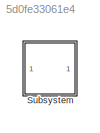
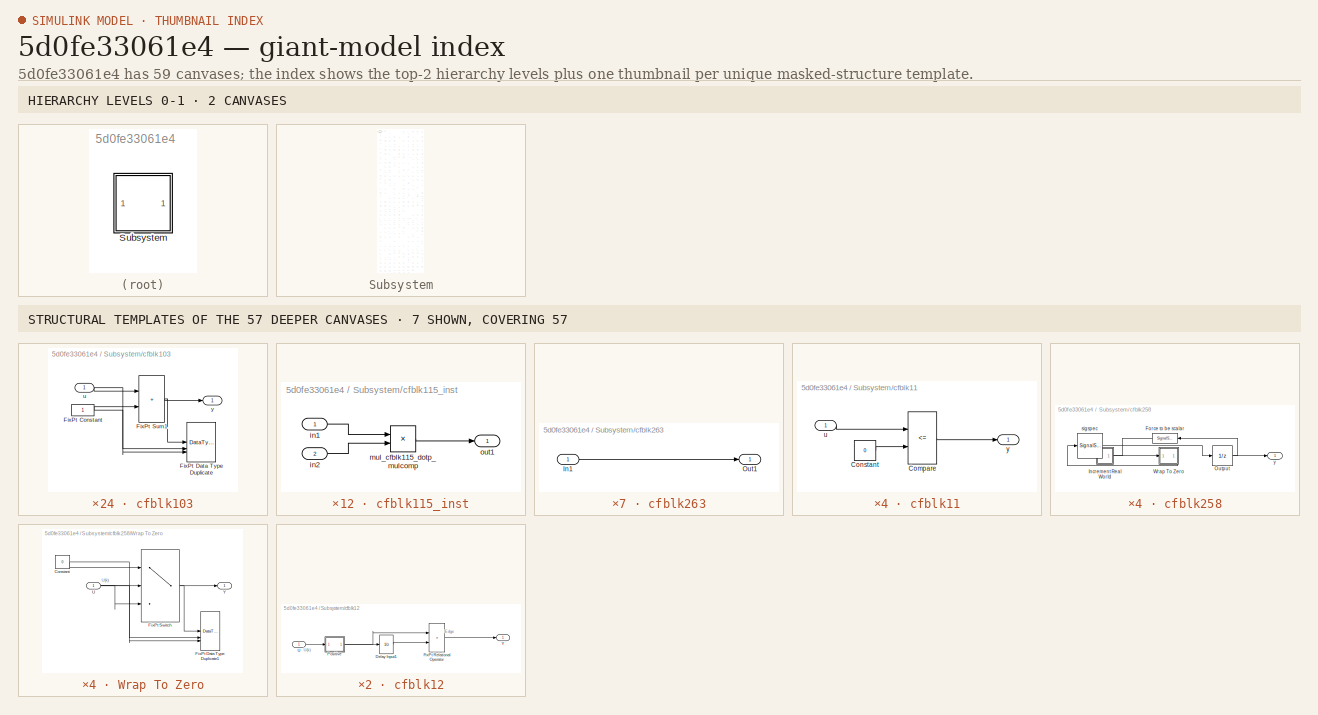
[diagram: thumbnail index - top-2 hierarchy levels (2 canvases) + 7 structural-template representatives of the remaining 57 canvases]
MODEL slx_5d0fe33061e4
KIND model
CONFIG AbsTol = auto
CONFIG EnableMultiTasking = off
CONFIG FixedStep = auto
CONFIG MaxStep = auto
CONFIG MinStep = auto
CONFIG RelTol = 1e-3
CONFIG SampleTimeConstraint = Unconstrained
CONFIG SolverName = VariableStepAuto
CONFIG StartTime = 0.0
CONFIG StopTime = 10.0
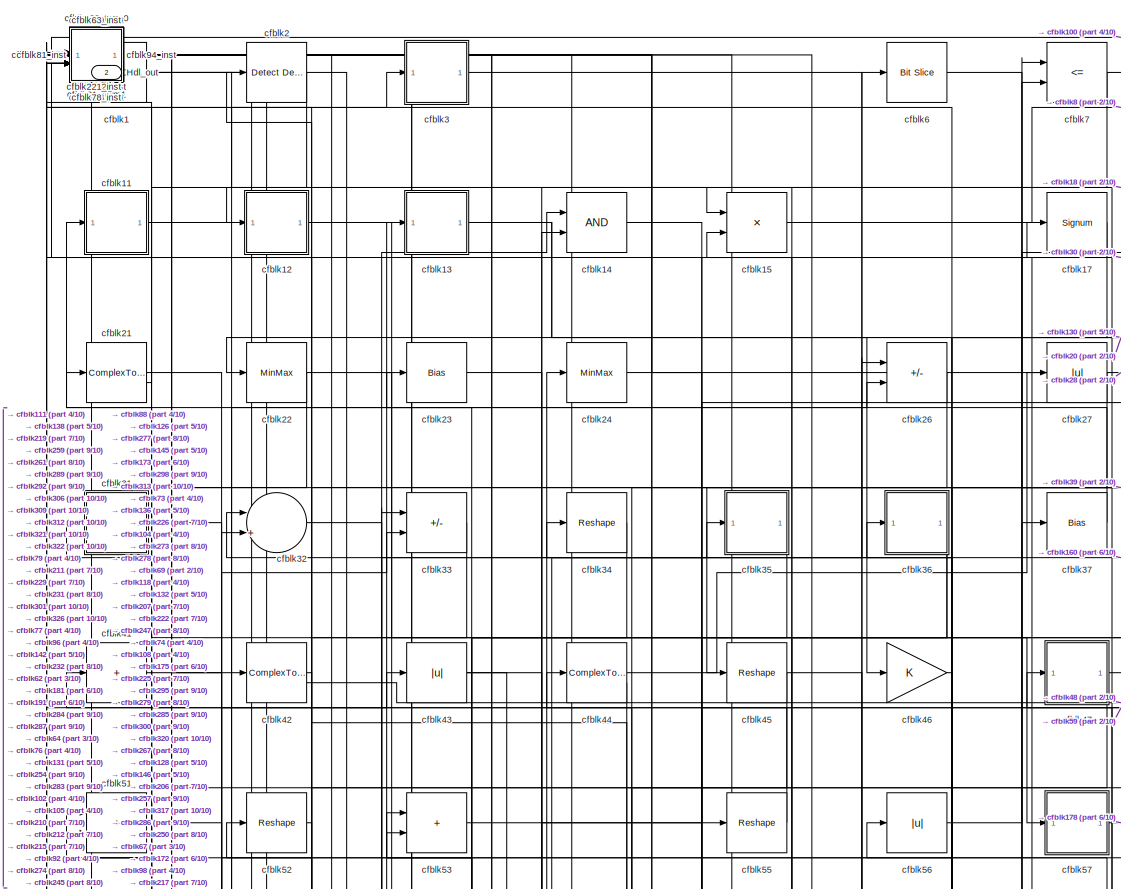
[diagram: Subsystem - part 1/10, top center region]
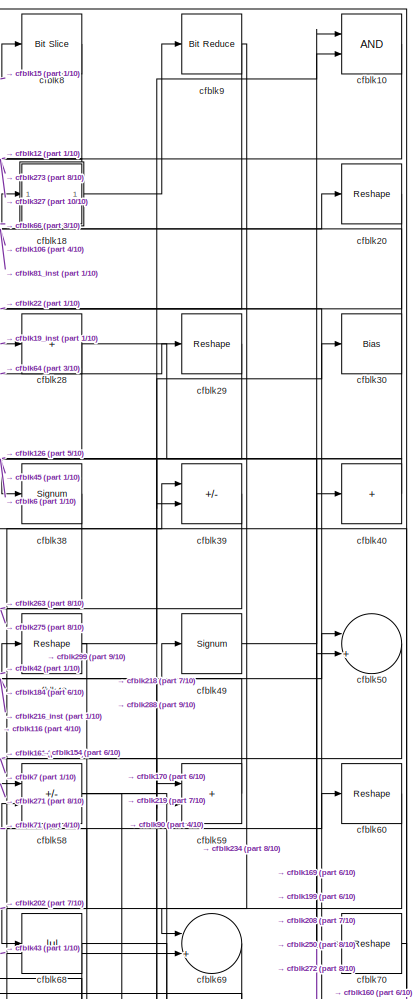
[diagram: Subsystem - part 2/10, top right region]
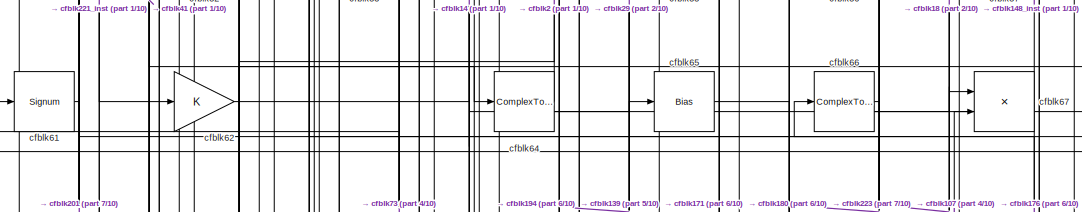
[diagram: Subsystem - part 3/10, top center region]
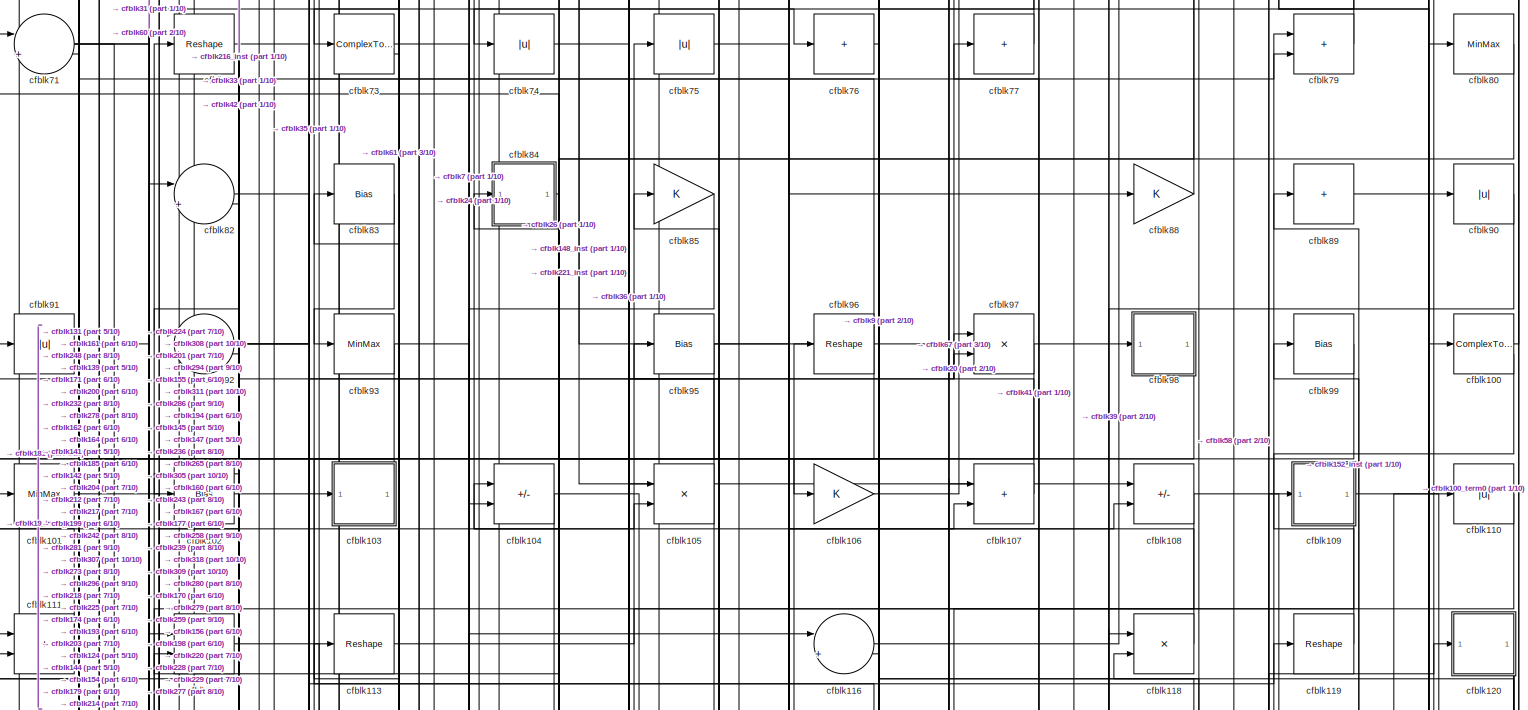
[diagram: Subsystem - part 4/10, full width, top band]
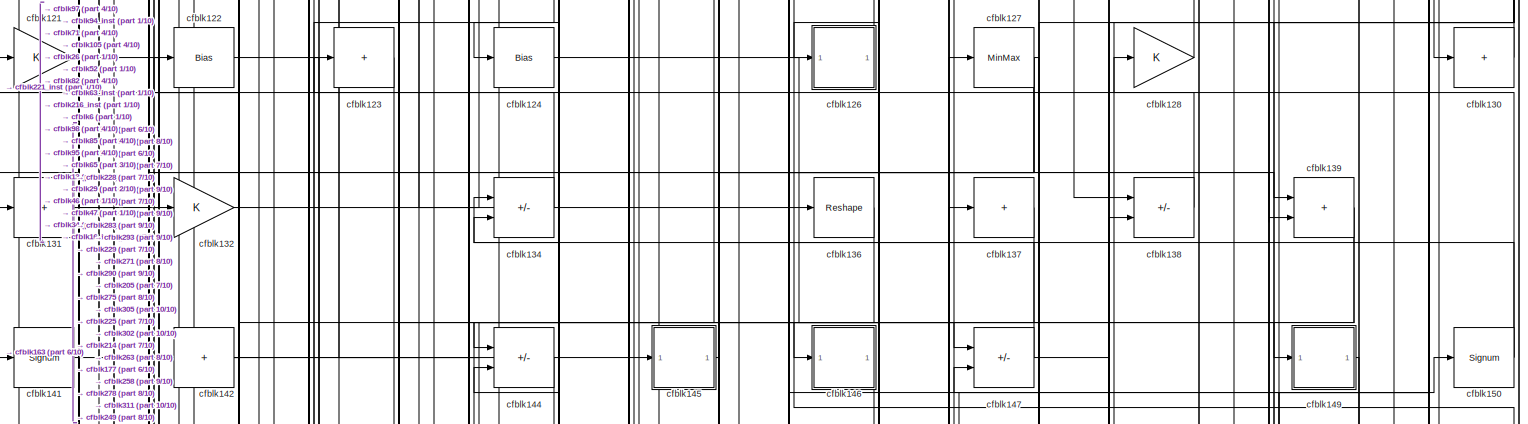
[diagram: Subsystem - part 5/10, full width, middle band]
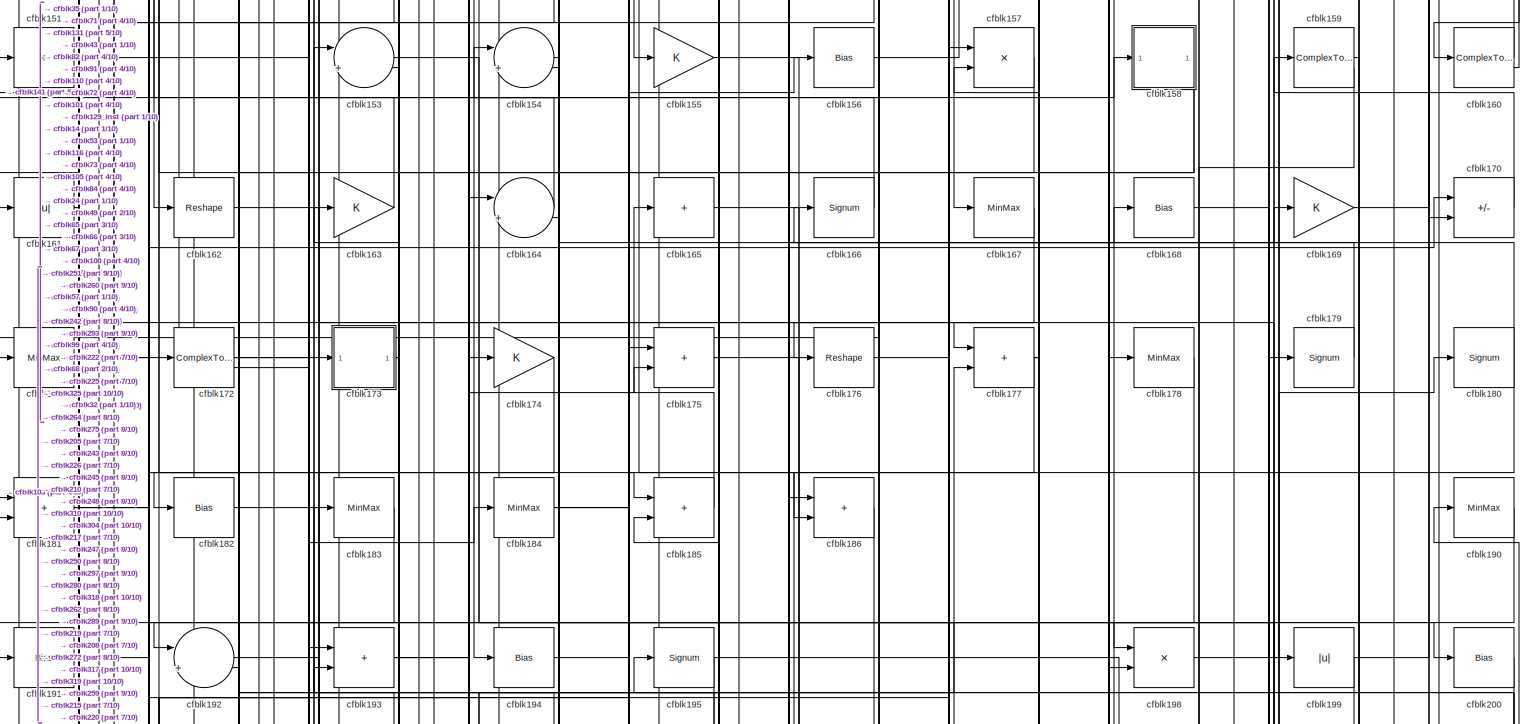
[diagram: Subsystem - part 6/10, full width, middle band]
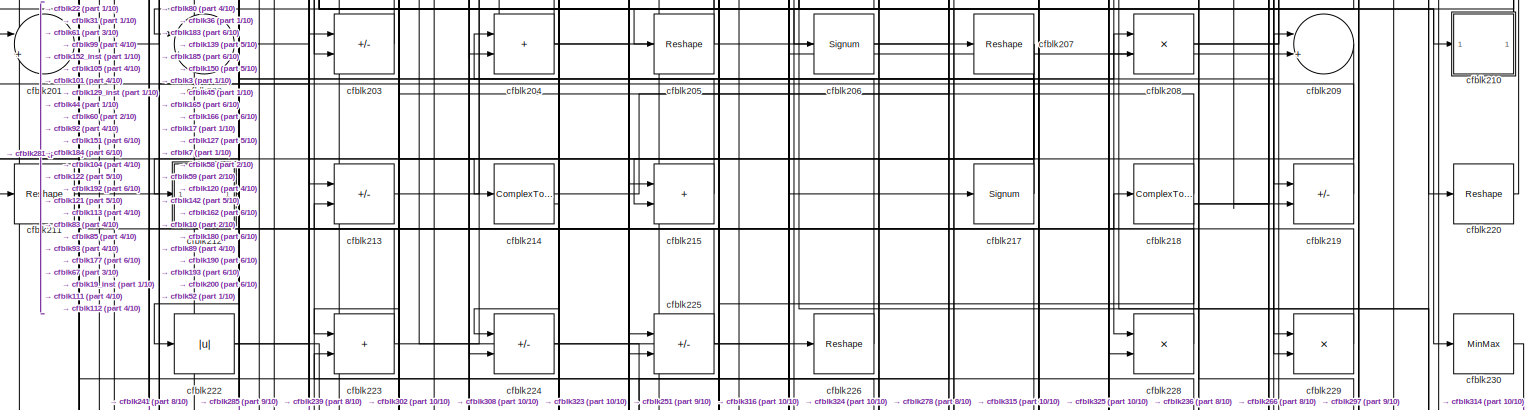
[diagram: Subsystem - part 7/10, full width, middle band]
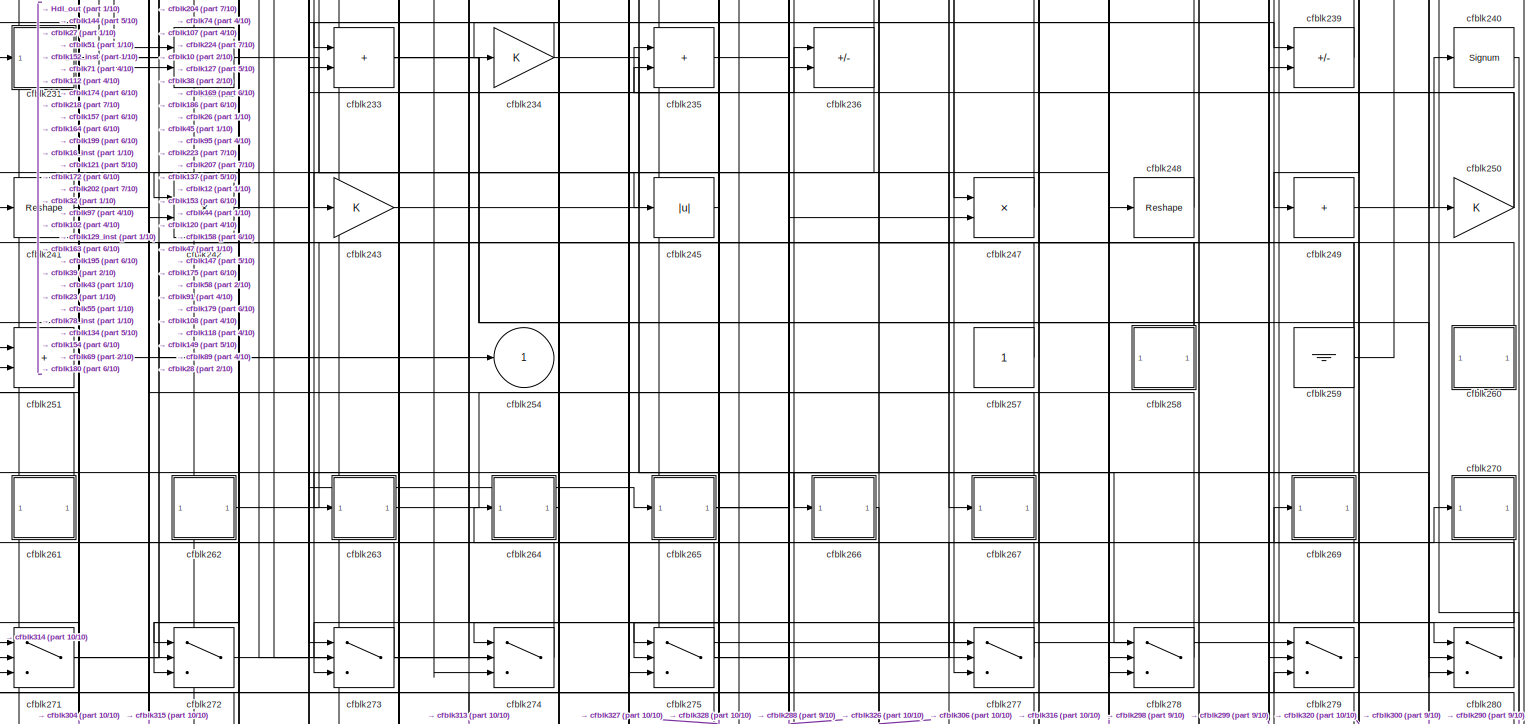
[diagram: Subsystem - part 8/10, full width, bottom band]
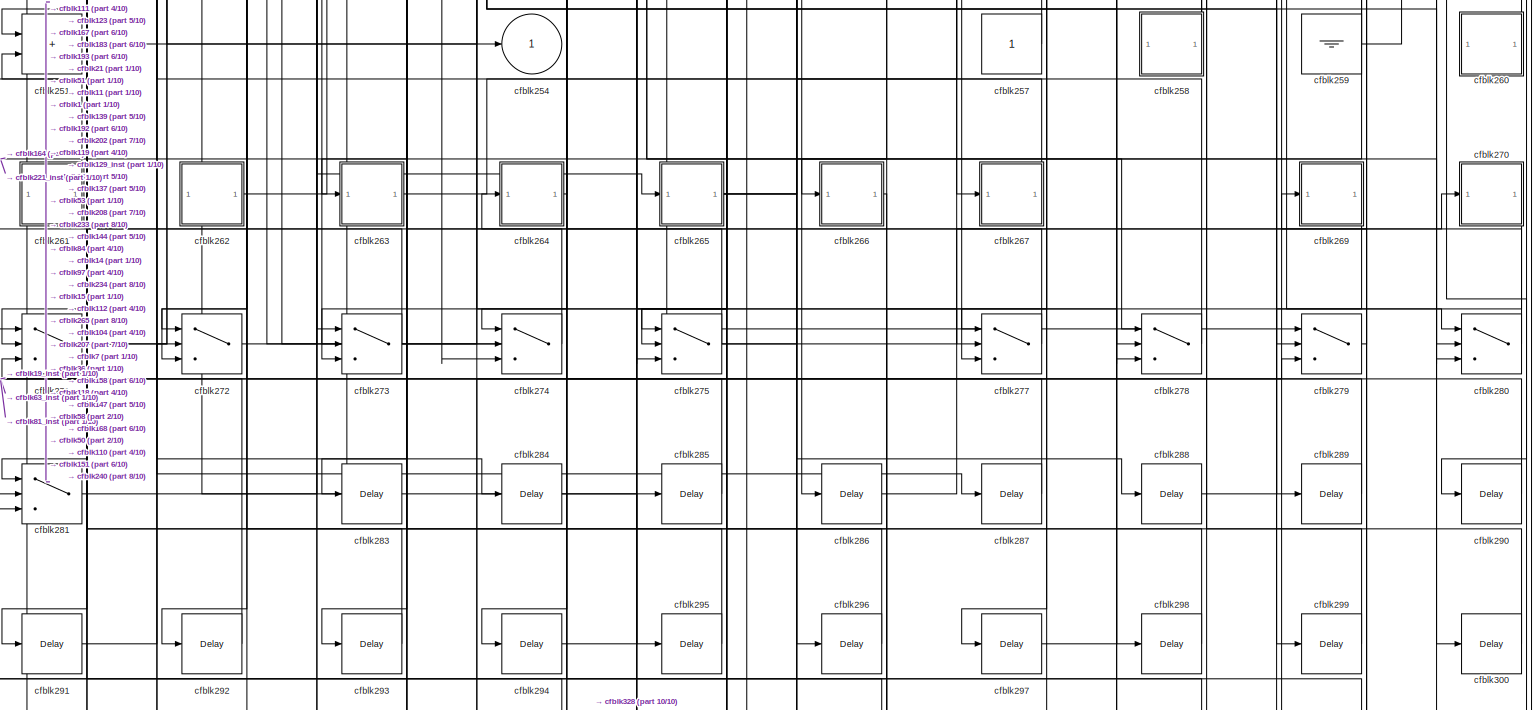
[diagram: Subsystem - part 9/10, full width, bottom band]
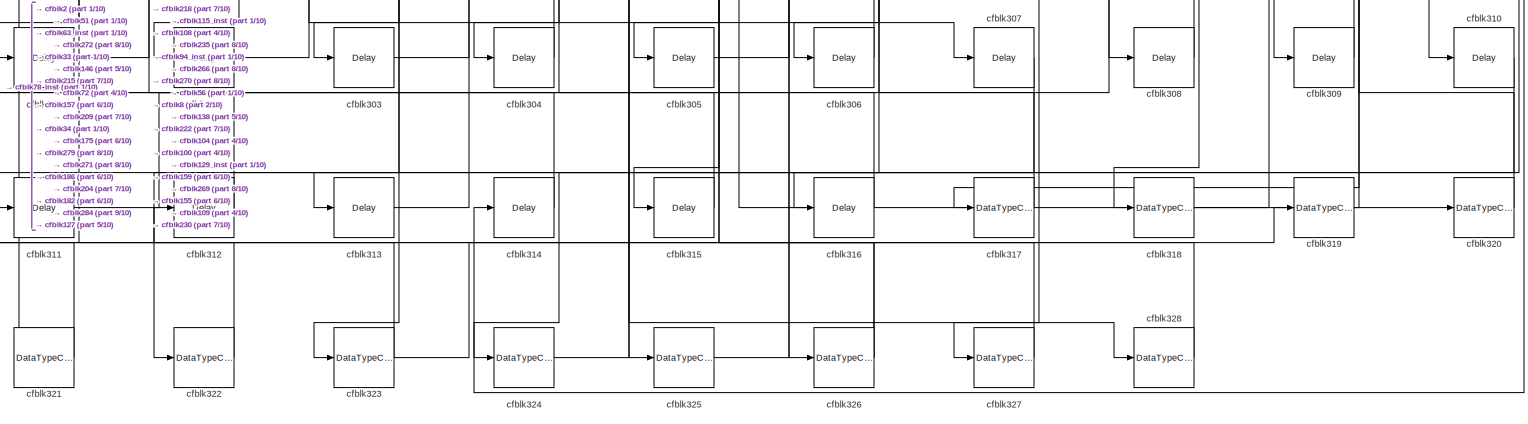
[diagram: Subsystem - part 10/10, full width, bottom band]
BLOCK [SubSystem] Subsystem
BLOCK [Outport] Subsystem/Hdl_out
  OutDataTypeStr = uint8
  Port = 2
  SampleTime = 1
BLOCK [Reference] Subsystem/cfblk1  REF=simulink/Logic and Bit
Operations/Detect
Decrease
  LibrarySourceBlock = hdlsllib/Logic and Bit\nOperations/Detect\nDecrease
  SourceBlock = simulink/Logic and Bit\nOperations/Detect\nDecrease
  SourceType = Detect Decrease
BLOCK [Logic] Subsystem/cfblk10
  AllPortsSameDT = off
  OutDataTypeStr = boolean
BLOCK [ComplexToRealImag] Subsystem/cfblk100
BLOCK [Terminator] Subsystem/cfblk100_term0
BLOCK [MinMax] Subsystem/cfblk101
  OutDataTypeStr = uint8
BLOCK [Bias] Subsystem/cfblk102
  Bias = 0.0
  SaturateOnIntegerOverflow = off
BLOCK [SubSystem] Subsystem/cfblk103
BLOCK [Constant] Subsystem/cfblk103/FixPt Constant
  DisableCoverage = on
  OutDataTypeStr = Inherit: Inherit via back propagation
  SampleTime = -1
BLOCK [DataTypeDuplicate] Subsystem/cfblk103/FixPt Data Type Duplicate
  DisableCoverage = on
  NumInputPorts = 3
BLOCK [Sum] Subsystem/cfblk103/FixPt Sum1
  IconShape = rectangular
  InputSameDT = on
  LockScale = on
  OutDataTypeStr = Inherit: Inherit via back propagation
BLOCK [Inport] Subsystem/cfblk103/u
  OutDataTypeStr = uint8
  SampleTime = 1
BLOCK [Outport] Subsystem/cfblk103/y
  SampleTime = 1
BLOCK [Sum] Subsystem/cfblk104
  IconShape = rectangular
  Inputs = +-
  OutDataTypeStr = uint8
BLOCK [Product] Subsystem/cfblk105
  Inputs = */
  OutDataTypeStr = uint8
  RndMeth = Zero
  SaturateOnIntegerOverflow = on
BLOCK [Gain] Subsystem/cfblk106
  OutDataTypeStr = uint8
BLOCK [Sum] Subsystem/cfblk107
  IconShape = rectangular
  OutDataTypeStr = uint8
BLOCK [Sum] Subsystem/cfblk108
  IconShape = rectangular
  Inputs = +-
  OutDataTypeStr = uint8
BLOCK [SubSystem] Subsystem/cfblk109
BLOCK [Constant] Subsystem/cfblk109/FixPt Constant
  DisableCoverage = on
  OutDataTypeStr = Inherit: Inherit via back propagation
  SampleTime = -1
BLOCK [DataTypeDuplicate] Subsystem/cfblk109/FixPt Data Type Duplicate
  DisableCoverage = on
  NumInputPorts = 3
BLOCK [Sum] Subsystem/cfblk109/FixPt Sum1
  IconShape = rectangular
  InputSameDT = on
  LockScale = on
  OutDataTypeStr = Inherit: Inherit via back propagation
BLOCK [Inport] Subsystem/cfblk109/u
  OutDataTypeStr = uint8
  SampleTime = 1
BLOCK [Outport] Subsystem/cfblk109/y
  SampleTime = 1
BLOCK [SubSystem] Subsystem/cfblk11
BLOCK [RelationalOperator] Subsystem/cfblk11/Compare
  Operator = <=
  OutDataTypeStr = fixdt(0, 8)
BLOCK [Constant] Subsystem/cfblk11/Constant
  DisableCoverage = on
  OutDataTypeStr = Inherit: Inherit via back propagation
  PreserveConstantTs = on
  SampleTime = -1
  Value = 0
BLOCK [Inport] Subsystem/cfblk11/u
  OutDataTypeStr = uint8
  SampleTime = 1
BLOCK [Outport] Subsystem/cfblk11/y
  SampleTime = 1
BLOCK [Abs] Subsystem/cfblk110
  OutDataTypeStr = uint8
  SaturateOnIntegerOverflow = off
BLOCK [Sum] Subsystem/cfblk111
  IconShape = rectangular
  OutDataTypeStr = uint8
BLOCK [Sum] Subsystem/cfblk112
  IconShape = rectangular
  OutDataTypeStr = uint8
BLOCK [Reshape] Subsystem/cfblk113
BLOCK [SubSystem] Subsystem/cfblk115_inst
BLOCK [Inport] Subsystem/cfblk115_inst/in1
  OutDataTypeStr = uint8
  SampleTime = 1
BLOCK [Inport] Subsystem/cfblk115_inst/in2
  OutDataTypeStr = uint8
  Port = 2
  SampleTime = 1
BLOCK [Product] Subsystem/cfblk115_inst/mul_cfblk115_dotp_mulcomp
  Inputs = **
  OutDataTypeStr = uint8
  SampleTime = 1
BLOCK [Outport] Subsystem/cfblk115_inst/out1
  OutDataTypeStr = uint8
  SampleTime = 1
BLOCK [Sum] Subsystem/cfblk116
  Inputs = |++
  OutDataTypeStr = uint8
BLOCK [Product] Subsystem/cfblk118
  Inputs = */
  OutDataTypeStr = uint8
  RndMeth = Zero
  SaturateOnIntegerOverflow = on
BLOCK [Reshape] Subsystem/cfblk119
BLOCK [SubSystem] Subsystem/cfblk12
BLOCK [UnitDelay] Subsystem/cfblk12/Delay Input1
  Description = Store in Global RAM
  DisableCoverage = on
  HasFrameUpgradeWarning = on
  InitialCondition = vinit
  SampleTime = -1
BLOCK [RelationalOperator] Subsystem/cfblk12/FixPt Relational Operator
  InputSameDT = off
  Operator = >
  OutDataTypeStr = fixdt(0, 8)
  ZeroCross = off
BLOCK [SubSystem] Subsystem/cfblk12/Positive
BLOCK [RelationalOperator] Subsystem/cfblk12/Positive/Compare
  Operator = >
  OutDataTypeStr = boolean
  ZeroCross = off
BLOCK [Constant] Subsystem/cfblk12/Positive/Constant
  DisableCoverage = on
  OutDataTypeStr = Inherit: Inherit via back propagation
  PreserveConstantTs = on
  SampleTime = -1
  Value = 0
BLOCK [Inport] Subsystem/cfblk12/Positive/u
  OutDataTypeStr = uint8
  SampleTime = 1
BLOCK [Outport] Subsystem/cfblk12/Positive/y
  SampleTime = 1
BLOCK [Inport] Subsystem/cfblk12/U
  OutDataTypeStr = uint8
  SampleTime = 1
BLOCK [Outport] Subsystem/cfblk12/Y
  SampleTime = 1
BLOCK [SubSystem] Subsystem/cfblk120
BLOCK [Constant] Subsystem/cfblk120/FixPt Constant
  DisableCoverage = on
  OutDataTypeStr = Inherit: Inherit via back propagation
  SampleTime = -1
BLOCK [DataTypeDuplicate] Subsystem/cfblk120/FixPt Data Type Duplicate
  DisableCoverage = on
  NumInputPorts = 3
BLOCK [Sum] Subsystem/cfblk120/FixPt Sum1
  IconShape = rectangular
  InputSameDT = on
  LockScale = on
  OutDataTypeStr = Inherit: Inherit via back propagation
BLOCK [Inport] Subsystem/cfblk120/u
  OutDataTypeStr = uint8
  SampleTime = 1
BLOCK [Outport] Subsystem/cfblk120/y
  SampleTime = 1
BLOCK [Gain] Subsystem/cfblk121
  OutDataTypeStr = uint8
BLOCK [Bias] Subsystem/cfblk122
  Bias = 0.0
  SaturateOnIntegerOverflow = off
BLOCK [Sum] Subsystem/cfblk123
  IconShape = rectangular
  Inputs = +
  OutDataTypeStr = uint8
BLOCK [Bias] Subsystem/cfblk124
  Bias = 0.0
  SaturateOnIntegerOverflow = off
BLOCK [SubSystem] Subsystem/cfblk126
BLOCK [Constant] Subsystem/cfblk126/FixPt Constant
  DisableCoverage = on
  OutDataTypeStr = Inherit: Inherit via back propagation
  SampleTime = -1
BLOCK [DataTypeDuplicate] Subsystem/cfblk126/FixPt Data Type Duplicate
  DisableCoverage = on
  NumInputPorts = 3
BLOCK [Sum] Subsystem/cfblk126/FixPt Sum1
  IconShape = rectangular
  InputSameDT = on
  LockScale = on
  OutDataTypeStr = Inherit: Inherit via back propagation
BLOCK [Inport] Subsystem/cfblk126/u
  OutDataTypeStr = uint8
  SampleTime = 1
BLOCK [Outport] Subsystem/cfblk126/y
  SampleTime = 1
BLOCK [MinMax] Subsystem/cfblk127
  OutDataTypeStr = uint8
BLOCK [Gain] Subsystem/cfblk128
  OutDataTypeStr = uint8
BLOCK [SubSystem] Subsystem/cfblk129_inst
BLOCK [Inport] Subsystem/cfblk129_inst/in1
  OutDataTypeStr = uint8
  SampleTime = 1
BLOCK [Inport] Subsystem/cfblk129_inst/in2
  OutDataTypeStr = uint8
  Port = 2
  SampleTime = 1
BLOCK [Product] Subsystem/cfblk129_inst/mul_cfblk129_dotp_mulcomp
  Inputs = **
  OutDataTypeStr = uint8
  SampleTime = 1
BLOCK [Outport] Subsystem/cfblk129_inst/out1
  OutDataTypeStr = uint8
  SampleTime = 1
BLOCK [SubSystem] Subsystem/cfblk13
BLOCK [RelationalOperator] Subsystem/cfblk13/Compare
  Operator = <=
  OutDataTypeStr = fixdt(0, 8)
BLOCK [Constant] Subsystem/cfblk13/Constant
  DisableCoverage = on
  OutDataTypeStr = Inherit: Inherit via back propagation
  PreserveConstantTs = on
  SampleTime = -1
  Value = 0
BLOCK [Inport] Subsystem/cfblk13/u
  OutDataTypeStr = uint8
  SampleTime = 1
BLOCK [Outport] Subsystem/cfblk13/y
  SampleTime = 1
BLOCK [Sum] Subsystem/cfblk130
  IconShape = rectangular
  Inputs = +
  OutDataTypeStr = uint8
BLOCK [Sum] Subsystem/cfblk131
  IconShape = rectangular
  Inputs = +
  OutDataTypeStr = uint8
BLOCK [Gain] Subsystem/cfblk132
  OutDataTypeStr = uint8
BLOCK [Sum] Subsystem/cfblk134
  IconShape = rectangular
  Inputs = +-
  OutDataTypeStr = uint8
BLOCK [Reshape] Subsystem/cfblk136
BLOCK [Sum] Subsystem/cfblk137
  IconShape = rectangular
  Inputs = +
  OutDataTypeStr = uint8
BLOCK [Sum] Subsystem/cfblk138
  IconShape = rectangular
  Inputs = +-
  OutDataTypeStr = uint8
BLOCK [Sum] Subsystem/cfblk139
  IconShape = rectangular
  OutDataTypeStr = uint8
BLOCK [Logic] Subsystem/cfblk14
  AllPortsSameDT = off
  OutDataTypeStr = boolean
BLOCK [Signum] Subsystem/cfblk141
BLOCK [Sum] Subsystem/cfblk142
  IconShape = rectangular
  Inputs = +
  OutDataTypeStr = uint8
BLOCK [Sum] Subsystem/cfblk144
  IconShape = rectangular
  Inputs = +-
  OutDataTypeStr = uint8
BLOCK [SubSystem] Subsystem/cfblk145
BLOCK [Constant] Subsystem/cfblk145/FixPt Constant
  DisableCoverage = on
  OutDataTypeStr = Inherit: Inherit via back propagation
  SampleTime = -1
BLOCK [DataTypeDuplicate] Subsystem/cfblk145/FixPt Data Type Duplicate
  DisableCoverage = on
  NumInputPorts = 3
BLOCK [Sum] Subsystem/cfblk145/FixPt Sum1
  IconShape = rectangular
  InputSameDT = on
  LockScale = on
  OutDataTypeStr = Inherit: Inherit via back propagation
BLOCK [Inport] Subsystem/cfblk145/u
  OutDataTypeStr = uint8
  SampleTime = 1
BLOCK [Outport] Subsystem/cfblk145/y
  SampleTime = 1
BLOCK [SubSystem] Subsystem/cfblk146
BLOCK [Constant] Subsystem/cfblk146/FixPt Constant
  DisableCoverage = on
  OutDataTypeStr = Inherit: Inherit via back propagation
  SampleTime = -1
BLOCK [DataTypeDuplicate] Subsystem/cfblk146/FixPt Data Type Duplicate
  DisableCoverage = on
  NumInputPorts = 3
BLOCK [Sum] Subsystem/cfblk146/FixPt Sum1
  IconShape = rectangular
  InputSameDT = on
  LockScale = on
  OutDataTypeStr = Inherit: Inherit via back propagation
BLOCK [Inport] Subsystem/cfblk146/u
  OutDataTypeStr = uint8
  SampleTime = 1
BLOCK [Outport] Subsystem/cfblk146/y
  SampleTime = 1
BLOCK [Sum] Subsystem/cfblk147
  IconShape = rectangular
  Inputs = +-
  OutDataTypeStr = uint8
BLOCK [SubSystem] Subsystem/cfblk148_inst
BLOCK [Inport] Subsystem/cfblk148_inst/in1
  OutDataTypeStr = uint8
  SampleTime = 1
BLOCK [Inport] Subsystem/cfblk148_inst/in2
  OutDataTypeStr = uint8
  Port = 2
  SampleTime = 1
BLOCK [Product] Subsystem/cfblk148_inst/mul_cfblk148_dotp_mulcomp
  Inputs = **
  OutDataTypeStr = uint8
  SampleTime = 1
BLOCK [Outport] Subsystem/cfblk148_inst/out1
  OutDataTypeStr = uint8
  SampleTime = 1
BLOCK [SubSystem] Subsystem/cfblk149
BLOCK [Constant] Subsystem/cfblk149/FixPt Constant
  DisableCoverage = on
  OutDataTypeStr = Inherit: Inherit via back propagation
  SampleTime = -1
BLOCK [DataTypeDuplicate] Subsystem/cfblk149/FixPt Data Type Duplicate
  DisableCoverage = on
  NumInputPorts = 3
BLOCK [Sum] Subsystem/cfblk149/FixPt Sum1
  IconShape = rectangular
  InputSameDT = on
  LockScale = on
  OutDataTypeStr = Inherit: Inherit via back propagation
BLOCK [Inport] Subsystem/cfblk149/u
  OutDataTypeStr = uint8
  SampleTime = 1
BLOCK [Outport] Subsystem/cfblk149/y
  SampleTime = 1
BLOCK [Product] Subsystem/cfblk15
  Inputs = */
  OutDataTypeStr = uint8
  RndMeth = Zero
  SaturateOnIntegerOverflow = on
BLOCK [Signum] Subsystem/cfblk150
BLOCK [Sum] Subsystem/cfblk151
  IconShape = rectangular
  Inputs = +
  OutDataTypeStr = uint8
BLOCK [SubSystem] Subsystem/cfblk152_inst
BLOCK [Inport] Subsystem/cfblk152_inst/in1
  OutDataTypeStr = uint8
  SampleTime = 1
BLOCK [Inport] Subsystem/cfblk152_inst/in2
  OutDataTypeStr = uint8
  Port = 2
  SampleTime = 1
BLOCK [Product] Subsystem/cfblk152_inst/mul_cfblk152_dotp_mulcomp
  Inputs = **
  OutDataTypeStr = uint8
  SampleTime = 1
BLOCK [Outport] Subsystem/cfblk152_inst/out1
  OutDataTypeStr = uint8
  SampleTime = 1
BLOCK [Sum] Subsystem/cfblk153
  Inputs = |++
  OutDataTypeStr = uint8
BLOCK [Sum] Subsystem/cfblk154
  Inputs = |++
  OutDataTypeStr = uint8
BLOCK [Gain] Subsystem/cfblk155
  OutDataTypeStr = uint8
BLOCK [Bias] Subsystem/cfblk156
  Bias = 0.0
  SaturateOnIntegerOverflow = off
BLOCK [Product] Subsystem/cfblk157
  Inputs = */
  OutDataTypeStr = uint8
  RndMeth = Zero
  SaturateOnIntegerOverflow = on
BLOCK [SubSystem] Subsystem/cfblk158
BLOCK [Constant] Subsystem/cfblk158/FixPt Constant
  DisableCoverage = on
  OutDataTypeStr = Inherit: Inherit via back propagation
  SampleTime = -1
BLOCK [DataTypeDuplicate] Subsystem/cfblk158/FixPt Data Type Duplicate
  DisableCoverage = on
  NumInputPorts = 3
BLOCK [Sum] Subsystem/cfblk158/FixPt Sum1
  IconShape = rectangular
  InputSameDT = on
  LockScale = on
  OutDataTypeStr = Inherit: Inherit via back propagation
BLOCK [Inport] Subsystem/cfblk158/u
  OutDataTypeStr = uint8
  SampleTime = 1
BLOCK [Outport] Subsystem/cfblk158/y
  SampleTime = 1
BLOCK [ComplexToRealImag] Subsystem/cfblk159
BLOCK [ComplexToRealImag] Subsystem/cfblk160
BLOCK [Abs] Subsystem/cfblk161
  OutDataTypeStr = uint8
  SaturateOnIntegerOverflow = off
BLOCK [Reshape] Subsystem/cfblk162
BLOCK [Gain] Subsystem/cfblk163
  OutDataTypeStr = uint8
BLOCK [Sum] Subsystem/cfblk164
  Inputs = |++
  OutDataTypeStr = uint8
BLOCK [Sum] Subsystem/cfblk165
  IconShape = rectangular
  Inputs = +
  OutDataTypeStr = uint8
BLOCK [Signum] Subsystem/cfblk166
BLOCK [MinMax] Subsystem/cfblk167
  OutDataTypeStr = uint8
BLOCK [Bias] Subsystem/cfblk168
  Bias = 0.0
  SaturateOnIntegerOverflow = off
BLOCK [Gain] Subsystem/cfblk169
  OutDataTypeStr = uint8
BLOCK [SubSystem] Subsystem/cfblk16_inst
BLOCK [Inport] Subsystem/cfblk16_inst/in1
  OutDataTypeStr = uint8
  SampleTime = 1
BLOCK [Inport] Subsystem/cfblk16_inst/in2
  OutDataTypeStr = uint8
  Port = 2
  SampleTime = 1
BLOCK [Product] Subsystem/cfblk16_inst/mul_cfblk16_dotp_mulcomp
  Inputs = **
  OutDataTypeStr = uint8
  SampleTime = 1
BLOCK [Outport] Subsystem/cfblk16_inst/out1
  OutDataTypeStr = uint8
  SampleTime = 1
BLOCK [Signum] Subsystem/cfblk17
BLOCK [Sum] Subsystem/cfblk170
  IconShape = rectangular
  Inputs = +-
  OutDataTypeStr = uint8
BLOCK [MinMax] Subsystem/cfblk171
  OutDataTypeStr = uint8
BLOCK [ComplexToRealImag] Subsystem/cfblk172
BLOCK [SubSystem] Subsystem/cfblk173
BLOCK [Constant] Subsystem/cfblk173/FixPt Constant
  DisableCoverage = on
  OutDataTypeStr = Inherit: Inherit via back propagation
  SampleTime = -1
BLOCK [DataTypeDuplicate] Subsystem/cfblk173/FixPt Data Type Duplicate
  DisableCoverage = on
  NumInputPorts = 3
BLOCK [Sum] Subsystem/cfblk173/FixPt Sum1
  IconShape = rectangular
  InputSameDT = on
  LockScale = on
  OutDataTypeStr = Inherit: Inherit via back propagation
BLOCK [Inport] Subsystem/cfblk173/u
  OutDataTypeStr = uint8
  SampleTime = 1
BLOCK [Outport] Subsystem/cfblk173/y
  SampleTime = 1
BLOCK [Gain] Subsystem/cfblk174
  OutDataTypeStr = uint8
BLOCK [Sum] Subsystem/cfblk175
  IconShape = rectangular
  OutDataTypeStr = uint8
BLOCK [Reshape] Subsystem/cfblk176
BLOCK [Sum] Subsystem/cfblk177
  IconShape = rectangular
  OutDataTypeStr = uint8
BLOCK [MinMax] Subsystem/cfblk178
  OutDataTypeStr = uint8
BLOCK [Signum] Subsystem/cfblk179
BLOCK [SubSystem] Subsystem/cfblk18
BLOCK [Constant] Subsystem/cfblk18/FixPt Constant
  DisableCoverage = on
  OutDataTypeStr = Inherit: Inherit via back propagation
  SampleTime = -1
BLOCK [DataTypeDuplicate] Subsystem/cfblk18/FixPt Data Type Duplicate
  DisableCoverage = on
  NumInputPorts = 3
BLOCK [Sum] Subsystem/cfblk18/FixPt Sum1
  IconShape = rectangular
  InputSameDT = on
  LockScale = on
  OutDataTypeStr = Inherit: Inherit via back propagation
BLOCK [Inport] Subsystem/cfblk18/u
  OutDataTypeStr = uint8
  SampleTime = 1
BLOCK [Outport] Subsystem/cfblk18/y
  SampleTime = 1
BLOCK [Signum] Subsystem/cfblk180
BLOCK [Sum] Subsystem/cfblk181
  IconShape = rectangular
  OutDataTypeStr = uint8
BLOCK [Bias] Subsystem/cfblk182
  Bias = 0.0
  SaturateOnIntegerOverflow = off
BLOCK [MinMax] Subsystem/cfblk183
  OutDataTypeStr = uint8
BLOCK [MinMax] Subsystem/cfblk184
  OutDataTypeStr = uint8
BLOCK [Sum] Subsystem/cfblk185
  IconShape = rectangular
  OutDataTypeStr = uint8
BLOCK [Sum] Subsystem/cfblk186
  IconShape = rectangular
  OutDataTypeStr = uint8
BLOCK [MinMax] Subsystem/cfblk190
  OutDataTypeStr = uint8
BLOCK [Bias] Subsystem/cfblk191
  Bias = 0.0
  SaturateOnIntegerOverflow = off
BLOCK [Sum] Subsystem/cfblk192
  Inputs = |++
  OutDataTypeStr = uint8
BLOCK [Sum] Subsystem/cfblk193
  IconShape = rectangular
  OutDataTypeStr = uint8
BLOCK [Bias] Subsystem/cfblk194
  Bias = 0.0
  SaturateOnIntegerOverflow = off
BLOCK [Signum] Subsystem/cfblk195
BLOCK [Product] Subsystem/cfblk198
  Inputs = */
  OutDataTypeStr = uint8
  RndMeth = Zero
  SaturateOnIntegerOverflow = on
BLOCK [Abs] Subsystem/cfblk199
  OutDataTypeStr = uint8
  SaturateOnIntegerOverflow = off
BLOCK [SubSystem] Subsystem/cfblk19_inst
BLOCK [Inport] Subsystem/cfblk19_inst/in1
  OutDataTypeStr = uint8
  SampleTime = 1
BLOCK [Inport] Subsystem/cfblk19_inst/in2
  OutDataTypeStr = uint8
  Port = 2
  SampleTime = 1
BLOCK [Product] Subsystem/cfblk19_inst/mul_cfblk19_dotp_mulcomp
  Inputs = **
  OutDataTypeStr = uint8
  SampleTime = 1
BLOCK [Outport] Subsystem/cfblk19_inst/out1
  OutDataTypeStr = uint8
  SampleTime = 1
BLOCK [Reference] Subsystem/cfblk2  REF=simulink/Logic and Bit
Operations/Detect
Decrease
  LibrarySourceBlock = hdlsllib/Logic and Bit\nOperations/Detect\nDecrease
  SourceBlock = simulink/Logic and Bit\nOperations/Detect\nDecrease
  SourceType = Detect Decrease
BLOCK [Reshape] Subsystem/cfblk20
BLOCK [Bias] Subsystem/cfblk200
  Bias = 0.0
  SaturateOnIntegerOverflow = off
BLOCK [Sum] Subsystem/cfblk201
  Inputs = |++
  OutDataTypeStr = uint8
BLOCK [Sum] Subsystem/cfblk202
  Inputs = |++
  OutDataTypeStr = uint8
BLOCK [Sum] Subsystem/cfblk203
  IconShape = rectangular
  Inputs = +-
  OutDataTypeStr = uint8
BLOCK [Sum] Subsystem/cfblk204
  IconShape = rectangular
  OutDataTypeStr = uint8
BLOCK [Reshape] Subsystem/cfblk205
BLOCK [Signum] Subsystem/cfblk206
BLOCK [Reshape] Subsystem/cfblk207
BLOCK [Product] Subsystem/cfblk208
  Inputs = */
  OutDataTypeStr = uint8
  RndMeth = Zero
  SaturateOnIntegerOverflow = on
BLOCK [Sum] Subsystem/cfblk209
  Inputs = |++
  OutDataTypeStr = uint8
BLOCK [ComplexToRealImag] Subsystem/cfblk21
BLOCK [SubSystem] Subsystem/cfblk210
BLOCK [Constant] Subsystem/cfblk210/FixPt Constant
  DisableCoverage = on
  OutDataTypeStr = Inherit: Inherit via back propagation
  SampleTime = -1
BLOCK [DataTypeDuplicate] Subsystem/cfblk210/FixPt Data Type Duplicate
  DisableCoverage = on
  NumInputPorts = 3
BLOCK [Sum] Subsystem/cfblk210/FixPt Sum1
  IconShape = rectangular
  InputSameDT = on
  LockScale = on
  OutDataTypeStr = Inherit: Inherit via back propagation
BLOCK [Inport] Subsystem/cfblk210/u
  OutDataTypeStr = uint8
  SampleTime = 1
BLOCK [Outport] Subsystem/cfblk210/y
  SampleTime = 1
BLOCK [Reshape] Subsystem/cfblk211
BLOCK [SubSystem] Subsystem/cfblk212
BLOCK [Constant] Subsystem/cfblk212/FixPt Constant
  DisableCoverage = on
  OutDataTypeStr = Inherit: Inherit via back propagation
  SampleTime = -1
BLOCK [DataTypeDuplicate] Subsystem/cfblk212/FixPt Data Type Duplicate
  DisableCoverage = on
  NumInputPorts = 3
BLOCK [Sum] Subsystem/cfblk212/FixPt Sum1
  IconShape = rectangular
  InputSameDT = on
  LockScale = on
  OutDataTypeStr = Inherit: Inherit via back propagation
BLOCK [Inport] Subsystem/cfblk212/u
  OutDataTypeStr = uint8
  SampleTime = 1
BLOCK [Outport] Subsystem/cfblk212/y
  SampleTime = 1
BLOCK [Sum] Subsystem/cfblk213
  IconShape = rectangular
  Inputs = +-
  OutDataTypeStr = uint8
BLOCK [ComplexToRealImag] Subsystem/cfblk214
BLOCK [Sum] Subsystem/cfblk215
  IconShape = rectangular
  OutDataTypeStr = uint8
BLOCK [SubSystem] Subsystem/cfblk216_inst
BLOCK [Inport] Subsystem/cfblk216_inst/in1
  OutDataTypeStr = uint8
  SampleTime = 1
BLOCK [Inport] Subsystem/cfblk216_inst/in2
  OutDataTypeStr = uint8
  Port = 2
  SampleTime = 1
BLOCK [Product] Subsystem/cfblk216_inst/mul_cfblk216_dotp_mulcomp
  Inputs = **
  OutDataTypeStr = uint8
  SampleTime = 1
BLOCK [Outport] Subsystem/cfblk216_inst/out1
  OutDataTypeStr = uint8
  SampleTime = 1
BLOCK [Signum] Subsystem/cfblk217
BLOCK [ComplexToRealImag] Subsystem/cfblk218
BLOCK [Sum] Subsystem/cfblk219
  IconShape = rectangular
  Inputs = +-
  OutDataTypeStr = uint8
BLOCK [Terminator] Subsystem/cfblk21_term1
BLOCK [MinMax] Subsystem/cfblk22
  OutDataTypeStr = uint8
BLOCK [Reshape] Subsystem/cfblk220
BLOCK [SubSystem] Subsystem/cfblk221_inst
BLOCK [Inport] Subsystem/cfblk221_inst/in1
  OutDataTypeStr = uint8
  SampleTime = 1
BLOCK [Inport] Subsystem/cfblk221_inst/in2
  OutDataTypeStr = uint8
  Port = 2
  SampleTime = 1
BLOCK [Product] Subsystem/cfblk221_inst/mul_cfblk221_dotp_mulcomp
  Inputs = **
  OutDataTypeStr = uint8
  SampleTime = 1
BLOCK [Outport] Subsystem/cfblk221_inst/out1
  OutDataTypeStr = uint8
  SampleTime = 1
BLOCK [Abs] Subsystem/cfblk222
  OutDataTypeStr = uint8
  SaturateOnIntegerOverflow = off
BLOCK [Sum] Subsystem/cfblk223
  IconShape = rectangular
  OutDataTypeStr = uint8
BLOCK [Sum] Subsystem/cfblk224
  IconShape = rectangular
  Inputs = +-
  OutDataTypeStr = uint8
BLOCK [Sum] Subsystem/cfblk225
  IconShape = rectangular
  Inputs = +-
  OutDataTypeStr = uint8
BLOCK [Reshape] Subsystem/cfblk226
BLOCK [Product] Subsystem/cfblk228
  Inputs = */
  OutDataTypeStr = uint8
  RndMeth = Zero
  SaturateOnIntegerOverflow = on
BLOCK [Product] Subsystem/cfblk229
  Inputs = */
  OutDataTypeStr = uint8
  RndMeth = Zero
  SaturateOnIntegerOverflow = on
BLOCK [Bias] Subsystem/cfblk23
  Bias = 0.0
  SaturateOnIntegerOverflow = off
BLOCK [MinMax] Subsystem/cfblk230
  OutDataTypeStr = uint8
BLOCK [SubSystem] Subsystem/cfblk231
BLOCK [Constant] Subsystem/cfblk231/FixPt Constant
  DisableCoverage = on
  OutDataTypeStr = Inherit: Inherit via back propagation
  SampleTime = -1
BLOCK [DataTypeDuplicate] Subsystem/cfblk231/FixPt Data Type Duplicate
  DisableCoverage = on
  NumInputPorts = 3
BLOCK [Sum] Subsystem/cfblk231/FixPt Sum1
  IconShape = rectangular
  InputSameDT = on
  LockScale = on
  OutDataTypeStr = Inherit: Inherit via back propagation
BLOCK [Inport] Subsystem/cfblk231/u
  OutDataTypeStr = uint8
  SampleTime = 1
BLOCK [Outport] Subsystem/cfblk231/y
  SampleTime = 1
BLOCK [Product] Subsystem/cfblk232
  Inputs = */
  OutDataTypeStr = uint8
  RndMeth = Zero
  SaturateOnIntegerOverflow = on
BLOCK [Sum] Subsystem/cfblk233
  IconShape = rectangular
  OutDataTypeStr = uint8
BLOCK [Gain] Subsystem/cfblk234
  OutDataTypeStr = uint8
BLOCK [Sum] Subsystem/cfblk235
  IconShape = rectangular
  OutDataTypeStr = uint8
BLOCK [Sum] Subsystem/cfblk236
  IconShape = rectangular
  Inputs = +-
  OutDataTypeStr = uint8
BLOCK [Sum] Subsystem/cfblk239
  IconShape = rectangular
  Inputs = +-
  OutDataTypeStr = uint8
BLOCK [MinMax] Subsystem/cfblk24
  OutDataTypeStr = uint8
BLOCK [Signum] Subsystem/cfblk240
BLOCK [Reshape] Subsystem/cfblk241
BLOCK [Product] Subsystem/cfblk242
  Inputs = */
  OutDataTypeStr = uint8
  RndMeth = Zero
  SaturateOnIntegerOverflow = on
BLOCK [Gain] Subsystem/cfblk243
  OutDataTypeStr = uint8
BLOCK [Abs] Subsystem/cfblk245
  OutDataTypeStr = uint8
  SaturateOnIntegerOverflow = off
BLOCK [Product] Subsystem/cfblk247
  Inputs = */
  OutDataTypeStr = uint8
  RndMeth = Zero
  SaturateOnIntegerOverflow = on
BLOCK [Reshape] Subsystem/cfblk248
BLOCK [Sum] Subsystem/cfblk249
  IconShape = rectangular
  Inputs = +
  OutDataTypeStr = uint8
BLOCK [Gain] Subsystem/cfblk250
  OutDataTypeStr = uint8
BLOCK [Sum] Subsystem/cfblk251
  IconShape = rectangular
  OutDataTypeStr = uint8
BLOCK [Outport] Subsystem/cfblk254
  OutDataTypeStr = uint8
  SampleTime = 1
  VectorParamsAs1DForOutWhenUnconnected = off
BLOCK [Constant] Subsystem/cfblk257
  OutDataTypeStr = uint8
  SampleTime = -1
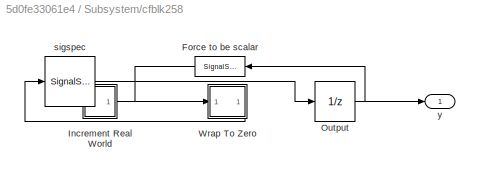
BLOCK [SubSystem] Subsystem/cfblk258
BLOCK [SignalSpecification] Subsystem/cfblk258/Force to be scalar
  Dimensions = 1
  DisableCoverage = on
BLOCK [SubSystem] Subsystem/cfblk258/Increment Real World
BLOCK [Constant] Subsystem/cfblk258/Increment Real World/FixPt Constant
  DisableCoverage = on
  OutDataTypeStr = Inherit: Inherit via back propagation
  SampleTime = -1
BLOCK [DataTypeDuplicate] Subsystem/cfblk258/Increment Real World/FixPt Data Type Duplicate
  DisableCoverage = on
  NumInputPorts = 3
BLOCK [Sum] Subsystem/cfblk258/Increment Real World/FixPt Sum1
  IconShape = rectangular
  InputSameDT = on
  LockScale = on
  OutDataTypeStr = Inherit: Inherit via back propagation
BLOCK [Inport] Subsystem/cfblk258/Increment Real World/u
  OutDataTypeStr = uint8
  SampleTime = 1
BLOCK [Outport] Subsystem/cfblk258/Increment Real World/y
  SampleTime = 1
BLOCK [UnitDelay] Subsystem/cfblk258/Output
  HasFrameUpgradeWarning = on
  InitialCondition = 0.0
  SampleTime = tsamp
BLOCK [SubSystem] Subsystem/cfblk258/Wrap To Zero
BLOCK [Constant] Subsystem/cfblk258/Wrap To Zero/Constant
  DisableCoverage = on
  OutDataTypeStr = Inherit: Inherit via back propagation
  SampleTime = -1
  Value = 0
BLOCK [DataTypeDuplicate] Subsystem/cfblk258/Wrap To Zero/FixPt Data Type Duplicate1
  DisableCoverage = on
  NumInputPorts = 3
BLOCK [Switch] Subsystem/cfblk258/Wrap To Zero/FixPt Switch
  Criteria = u2 > Threshold
  InputSameDT = off
  OutDataTypeStr = Inherit: Inherit via back propagation
  SaturateOnIntegerOverflow = off
  Threshold = Threshold
  ZeroCross = off
BLOCK [Inport] Subsystem/cfblk258/Wrap To Zero/U
  OutDataTypeStr = uint8
  SampleTime = 1
BLOCK [Outport] Subsystem/cfblk258/Wrap To Zero/Y
  SampleTime = 1
BLOCK [SignalSpecification] Subsystem/cfblk258/sigspec
  Dimensions = 1
  OutDataTypeStr = uint8
BLOCK [Outport] Subsystem/cfblk258/y
  SampleTime = 1
BLOCK [Ground] Subsystem/cfblk259
BLOCK [Sum] Subsystem/cfblk26
  IconShape = rectangular
  Inputs = +-
  OutDataTypeStr = uint8
BLOCK [SubSystem] Subsystem/cfblk260
BLOCK [SignalSpecification] Subsystem/cfblk260/Force to be scalar
  Dimensions = 1
  DisableCoverage = on
BLOCK [SubSystem] Subsystem/cfblk260/Increment Real World
BLOCK [Constant] Subsystem/cfblk260/Increment Real World/FixPt Constant
  DisableCoverage = on
  OutDataTypeStr = Inherit: Inherit via back propagation
  SampleTime = -1
BLOCK [DataTypeDuplicate] Subsystem/cfblk260/Increment Real World/FixPt Data Type Duplicate
  DisableCoverage = on
  NumInputPorts = 3
BLOCK [Sum] Subsystem/cfblk260/Increment Real World/FixPt Sum1
  IconShape = rectangular
  InputSameDT = on
  LockScale = on
  OutDataTypeStr = Inherit: Inherit via back propagation
BLOCK [Inport] Subsystem/cfblk260/Increment Real World/u
  OutDataTypeStr = uint16
  SampleTime = 1
BLOCK [Outport] Subsystem/cfblk260/Increment Real World/y
  SampleTime = 1
BLOCK [UnitDelay] Subsystem/cfblk260/Output
  HasFrameUpgradeWarning = on
  InitialCondition = 0.0
  SampleTime = tsamp
BLOCK [SubSystem] Subsystem/cfblk260/Wrap To Zero
BLOCK [Constant] Subsystem/cfblk260/Wrap To Zero/Constant
  DisableCoverage = on
  OutDataTypeStr = Inherit: Inherit via back propagation
  SampleTime = -1
  Value = 0
BLOCK [DataTypeDuplicate] Subsystem/cfblk260/Wrap To Zero/FixPt Data Type Duplicate1
  DisableCoverage = on
  NumInputPorts = 3
BLOCK [Switch] Subsystem/cfblk260/Wrap To Zero/FixPt Switch
  Criteria = u2 > Threshold
  InputSameDT = off
  OutDataTypeStr = Inherit: Inherit via back propagation
  SaturateOnIntegerOverflow = off
  Threshold = Threshold
  ZeroCross = off
BLOCK [Inport] Subsystem/cfblk260/Wrap To Zero/U
  OutDataTypeStr = uint16
  SampleTime = 1
BLOCK [Outport] Subsystem/cfblk260/Wrap To Zero/Y
  SampleTime = 1
BLOCK [SignalSpecification] Subsystem/cfblk260/sigspec
  Dimensions = 1
  OutDataTypeStr = uint16
BLOCK [Outport] Subsystem/cfblk260/y
  SampleTime = 1
BLOCK [SubSystem] Subsystem/cfblk261
BLOCK [SignalSpecification] Subsystem/cfblk261/Force to be scalar
  Dimensions = 1
  DisableCoverage = on
BLOCK [SubSystem] Subsystem/cfblk261/Increment Real World
BLOCK [Constant] Subsystem/cfblk261/Increment Real World/FixPt Constant
  DisableCoverage = on
  OutDataTypeStr = Inherit: Inherit via back propagation
  SampleTime = -1
BLOCK [DataTypeDuplicate] Subsystem/cfblk261/Increment Real World/FixPt Data Type Duplicate
  DisableCoverage = on
  NumInputPorts = 3
BLOCK [Sum] Subsystem/cfblk261/Increment Real World/FixPt Sum1
  IconShape = rectangular
  InputSameDT = on
  LockScale = on
  OutDataTypeStr = Inherit: Inherit via back propagation
BLOCK [Inport] Subsystem/cfblk261/Increment Real World/u
  OutDataTypeStr = uint8
  SampleTime = 1
BLOCK [Outport] Subsystem/cfblk261/Increment Real World/y
  SampleTime = 1
BLOCK [UnitDelay] Subsystem/cfblk261/Output
  HasFrameUpgradeWarning = on
  InitialCondition = 0.0
  SampleTime = tsamp
BLOCK [SubSystem] Subsystem/cfblk261/Wrap To Zero
BLOCK [Constant] Subsystem/cfblk261/Wrap To Zero/Constant
  DisableCoverage = on
  OutDataTypeStr = Inherit: Inherit via back propagation
  SampleTime = -1
  Value = 0
BLOCK [DataTypeDuplicate] Subsystem/cfblk261/Wrap To Zero/FixPt Data Type Duplicate1
  DisableCoverage = on
  NumInputPorts = 3
BLOCK [Switch] Subsystem/cfblk261/Wrap To Zero/FixPt Switch
  Criteria = u2 > Threshold
  InputSameDT = off
  OutDataTypeStr = Inherit: Inherit via back propagation
  SaturateOnIntegerOverflow = off
  Threshold = Threshold
  ZeroCross = off
BLOCK [Inport] Subsystem/cfblk261/Wrap To Zero/U
  OutDataTypeStr = uint8
  SampleTime = 1
BLOCK [Outport] Subsystem/cfblk261/Wrap To Zero/Y
  SampleTime = 1
BLOCK [SignalSpecification] Subsystem/cfblk261/sigspec
  Dimensions = 1
  OutDataTypeStr = uint8
BLOCK [Outport] Subsystem/cfblk261/y
  SampleTime = 1
BLOCK [SubSystem] Subsystem/cfblk262
BLOCK [SignalSpecification] Subsystem/cfblk262/Force to be scalar
  Dimensions = 1
  DisableCoverage = on
BLOCK [SubSystem] Subsystem/cfblk262/Increment Real World
BLOCK [Constant] Subsystem/cfblk262/Increment Real World/FixPt Constant
  DisableCoverage = on
  OutDataTypeStr = Inherit: Inherit via back propagation
  SampleTime = -1
BLOCK [DataTypeDuplicate] Subsystem/cfblk262/Increment Real World/FixPt Data Type Duplicate
  DisableCoverage = on
  NumInputPorts = 3
BLOCK [Sum] Subsystem/cfblk262/Increment Real World/FixPt Sum1
  IconShape = rectangular
  InputSameDT = on
  LockScale = on
  OutDataTypeStr = Inherit: Inherit via back propagation
BLOCK [Inport] Subsystem/cfblk262/Increment Real World/u
  OutDataTypeStr = uint8
  SampleTime = 1
BLOCK [Outport] Subsystem/cfblk262/Increment Real World/y
  SampleTime = 1
BLOCK [UnitDelay] Subsystem/cfblk262/Output
  HasFrameUpgradeWarning = on
  InitialCondition = 0.0
  SampleTime = tsamp
BLOCK [SubSystem] Subsystem/cfblk262/Wrap To Zero
BLOCK [Constant] Subsystem/cfblk262/Wrap To Zero/Constant
  DisableCoverage = on
  OutDataTypeStr = Inherit: Inherit via back propagation
  SampleTime = -1
  Value = 0
BLOCK [DataTypeDuplicate] Subsystem/cfblk262/Wrap To Zero/FixPt Data Type Duplicate1
  DisableCoverage = on
  NumInputPorts = 3
BLOCK [Switch] Subsystem/cfblk262/Wrap To Zero/FixPt Switch
  Criteria = u2 > Threshold
  InputSameDT = off
  OutDataTypeStr = Inherit: Inherit via back propagation
  SaturateOnIntegerOverflow = off
  Threshold = Threshold
  ZeroCross = off
BLOCK [Inport] Subsystem/cfblk262/Wrap To Zero/U
  OutDataTypeStr = uint8
  SampleTime = 1
BLOCK [Outport] Subsystem/cfblk262/Wrap To Zero/Y
  SampleTime = 1
BLOCK [SignalSpecification] Subsystem/cfblk262/sigspec
  Dimensions = 1
  OutDataTypeStr = uint8
BLOCK [Outport] Subsystem/cfblk262/y
  SampleTime = 1
BLOCK [SubSystem] Subsystem/cfblk263
BLOCK [Inport] Subsystem/cfblk263/In1
  OutDataTypeStr = uint8
  PortDimensions = 1
  SampleTime = 1
BLOCK [Outport] Subsystem/cfblk263/Out1
  SampleTime = 1
BLOCK [SubSystem] Subsystem/cfblk264
BLOCK [Inport] Subsystem/cfblk264/In1
  OutDataTypeStr = uint8
  PortDimensions = 1
  SampleTime = 1
BLOCK [Outport] Subsystem/cfblk264/Out1
  SampleTime = 1
BLOCK [SubSystem] Subsystem/cfblk265
BLOCK [Inport] Subsystem/cfblk265/In1
  OutDataTypeStr = uint8
  PortDimensions = 1
  SampleTime = 1
BLOCK [Outport] Subsystem/cfblk265/Out1
  SampleTime = 1
BLOCK [SubSystem] Subsystem/cfblk266
BLOCK [Inport] Subsystem/cfblk266/In1
  OutDataTypeStr = uint8
  PortDimensions = 1
  SampleTime = 1
BLOCK [Outport] Subsystem/cfblk266/Out1
  SampleTime = 1
BLOCK [SubSystem] Subsystem/cfblk267
BLOCK [Inport] Subsystem/cfblk267/In1
  OutDataTypeStr = uint8
  PortDimensions = 1
  SampleTime = 1
BLOCK [Outport] Subsystem/cfblk267/Out1
  SampleTime = 1
BLOCK [SubSystem] Subsystem/cfblk269
BLOCK [Inport] Subsystem/cfblk269/In1
  OutDataTypeStr = uint8
  PortDimensions = 1
  SampleTime = 1
BLOCK [Outport] Subsystem/cfblk269/Out1
  SampleTime = 1
BLOCK [Abs] Subsystem/cfblk27
  OutDataTypeStr = uint8
  SaturateOnIntegerOverflow = off
BLOCK [SubSystem] Subsystem/cfblk270
BLOCK [Inport] Subsystem/cfblk270/In1
  OutDataTypeStr = uint8
  PortDimensions = 1
  SampleTime = 1
BLOCK [Outport] Subsystem/cfblk270/Out1
  SampleTime = 1
BLOCK [Switch] Subsystem/cfblk271
  InputSameDT = off
  OutDataTypeStr = uint8
  SaturateOnIntegerOverflow = off
BLOCK [Switch] Subsystem/cfblk272
  InputSameDT = off
  OutDataTypeStr = uint8
  SaturateOnIntegerOverflow = off
BLOCK [Switch] Subsystem/cfblk273
  InputSameDT = off
  OutDataTypeStr = uint8
  SaturateOnIntegerOverflow = off
BLOCK [Switch] Subsystem/cfblk274
  InputSameDT = off
  OutDataTypeStr = uint8
  SaturateOnIntegerOverflow = off
BLOCK [Switch] Subsystem/cfblk275
  InputSameDT = off
  OutDataTypeStr = uint8
  SaturateOnIntegerOverflow = off
BLOCK [Switch] Subsystem/cfblk277
  InputSameDT = off
  OutDataTypeStr = uint8
  SaturateOnIntegerOverflow = off
BLOCK [Switch] Subsystem/cfblk278
  InputSameDT = off
  OutDataTypeStr = uint8
  SaturateOnIntegerOverflow = off
BLOCK [Switch] Subsystem/cfblk279
  InputSameDT = off
  OutDataTypeStr = uint8
  SaturateOnIntegerOverflow = off
BLOCK [Sum] Subsystem/cfblk28
  IconShape = rectangular
  Inputs = +
  OutDataTypeStr = uint8
BLOCK [Switch] Subsystem/cfblk280
  InputSameDT = off
  OutDataTypeStr = uint8
  SaturateOnIntegerOverflow = off
BLOCK [Switch] Subsystem/cfblk281
  InputSameDT = off
  OutDataTypeStr = uint8
  SaturateOnIntegerOverflow = off
BLOCK [Delay] Subsystem/cfblk283
  InputPortMap = u0
  SampleTime = 1
BLOCK [Delay] Subsystem/cfblk284
  InputPortMap = u0
  SampleTime = 1
BLOCK [Delay] Subsystem/cfblk285
  InputPortMap = u0
  SampleTime = 1
BLOCK [Delay] Subsystem/cfblk286
  InputPortMap = u0
  SampleTime = 1
BLOCK [Delay] Subsystem/cfblk287
  InputPortMap = u0
  SampleTime = 1
BLOCK [Delay] Subsystem/cfblk288
  InputPortMap = u0
  SampleTime = 1
BLOCK [Delay] Subsystem/cfblk289
  InputPortMap = u0
  SampleTime = 1
BLOCK [Reshape] Subsystem/cfblk29
BLOCK [Delay] Subsystem/cfblk290
  InputPortMap = u0
  SampleTime = 1
BLOCK [Delay] Subsystem/cfblk291
  InputPortMap = u0
  SampleTime = 1
BLOCK [Delay] Subsystem/cfblk292
  InputPortMap = u0
  SampleTime = 1
BLOCK [Delay] Subsystem/cfblk293
  InputPortMap = u0
  SampleTime = 1
BLOCK [Delay] Subsystem/cfblk294
  InputPortMap = u0
  SampleTime = 1
BLOCK [Delay] Subsystem/cfblk295
  InputPortMap = u0
  SampleTime = 1
BLOCK [Delay] Subsystem/cfblk296
  InputPortMap = u0
  SampleTime = 1
BLOCK [Delay] Subsystem/cfblk297
  InputPortMap = u0
  SampleTime = 1
BLOCK [Delay] Subsystem/cfblk298
  InputPortMap = u0
  SampleTime = 1
BLOCK [Delay] Subsystem/cfblk299
  InputPortMap = u0
  SampleTime = 1
BLOCK [SubSystem] Subsystem/cfblk3
BLOCK [UnitDelay] Subsystem/cfblk3/Delay Input1
  Description = Store in Global RAM
  DisableCoverage = on
  HasFrameUpgradeWarning = on
  InitialCondition = vinit
  SampleTime = -1
BLOCK [RelationalOperator] Subsystem/cfblk3/FixPt Relational Operator
  InputSameDT = off
  Operator = >
  OutDataTypeStr = fixdt(0, 8)
  ZeroCross = off
BLOCK [SubSystem] Subsystem/cfblk3/Nonpositive
BLOCK [RelationalOperator] Subsystem/cfblk3/Nonpositive/Compare
  Operator = <=
  OutDataTypeStr = boolean
  ZeroCross = off
BLOCK [Constant] Subsystem/cfblk3/Nonpositive/Constant
  DisableCoverage = on
  OutDataTypeStr = Inherit: Inherit via back propagation
  PreserveConstantTs = on
  SampleTime = -1
  Value = 0
BLOCK [Inport] Subsystem/cfblk3/Nonpositive/u
  OutDataTypeStr = uint8
  SampleTime = 1
BLOCK [Outport] Subsystem/cfblk3/Nonpositive/y
  SampleTime = 1
BLOCK [Inport] Subsystem/cfblk3/U
  OutDataTypeStr = uint8
  SampleTime = 1
BLOCK [Outport] Subsystem/cfblk3/Y
  SampleTime = 1
BLOCK [Bias] Subsystem/cfblk30
  Bias = 0.0
  SaturateOnIntegerOverflow = off
BLOCK [Delay] Subsystem/cfblk300
  InputPortMap = u0
  SampleTime = 1
BLOCK [Delay] Subsystem/cfblk301
  InputPortMap = u0
  SampleTime = 1
BLOCK [Delay] Subsystem/cfblk302
  InputPortMap = u0
  SampleTime = 1
BLOCK [Delay] Subsystem/cfblk303
  InputPortMap = u0
  SampleTime = 1
BLOCK [Delay] Subsystem/cfblk304
  InputPortMap = u0
  SampleTime = 1
BLOCK [Delay] Subsystem/cfblk305
  InputPortMap = u0
  SampleTime = 1
BLOCK [Delay] Subsystem/cfblk306
  InputPortMap = u0
  SampleTime = 1
BLOCK [Delay] Subsystem/cfblk307
  InputPortMap = u0
  SampleTime = 1
BLOCK [Delay] Subsystem/cfblk308
  InputPortMap = u0
  SampleTime = 1
BLOCK [Delay] Subsystem/cfblk309
  InputPortMap = u0
  SampleTime = 1
BLOCK [SubSystem] Subsystem/cfblk31
BLOCK [Constant] Subsystem/cfblk31/FixPt Constant
  DisableCoverage = on
  OutDataTypeStr = Inherit: Inherit via back propagation
  SampleTime = -1
BLOCK [DataTypeDuplicate] Subsystem/cfblk31/FixPt Data Type Duplicate
  DisableCoverage = on
  NumInputPorts = 3
BLOCK [Sum] Subsystem/cfblk31/FixPt Sum1
  IconShape = rectangular
  InputSameDT = on
  LockScale = on
  OutDataTypeStr = Inherit: Inherit via back propagation
BLOCK [Inport] Subsystem/cfblk31/u
  OutDataTypeStr = uint8
  SampleTime = 1
BLOCK [Outport] Subsystem/cfblk31/y
  SampleTime = 1
BLOCK [Delay] Subsystem/cfblk310
  InputPortMap = u0
  SampleTime = 1
BLOCK [Delay] Subsystem/cfblk311
  InputPortMap = u0
  SampleTime = 1
BLOCK [Delay] Subsystem/cfblk312
  InputPortMap = u0
  SampleTime = 1
BLOCK [Delay] Subsystem/cfblk313
  InputPortMap = u0
  SampleTime = 1
BLOCK [Delay] Subsystem/cfblk314
  InputPortMap = u0
  SampleTime = 1
BLOCK [Delay] Subsystem/cfblk315
  InputPortMap = u0
  SampleTime = 1
BLOCK [Delay] Subsystem/cfblk316
  InputPortMap = u0
  SampleTime = 1
BLOCK [DataTypeConversion] Subsystem/cfblk317
  OutDataTypeStr = uint8
  RndMeth = Floor
  SaturateOnIntegerOverflow = off
BLOCK [DataTypeConversion] Subsystem/cfblk318
  OutDataTypeStr = uint8
  RndMeth = Floor
  SaturateOnIntegerOverflow = off
BLOCK [DataTypeConversion] Subsystem/cfblk319
  OutDataTypeStr = uint8
  RndMeth = Floor
  SaturateOnIntegerOverflow = off
BLOCK [Sum] Subsystem/cfblk32
  Inputs = |++
  OutDataTypeStr = uint8
BLOCK [DataTypeConversion] Subsystem/cfblk320
  OutDataTypeStr = uint8
  RndMeth = Floor
  SaturateOnIntegerOverflow = off
BLOCK [DataTypeConversion] Subsystem/cfblk321
  OutDataTypeStr = uint8
  RndMeth = Floor
  SaturateOnIntegerOverflow = off
BLOCK [DataTypeConversion] Subsystem/cfblk322
  OutDataTypeStr = uint8
  RndMeth = Floor
  SaturateOnIntegerOverflow = off
BLOCK [DataTypeConversion] Subsystem/cfblk323
  OutDataTypeStr = uint8
  RndMeth = Floor
  SaturateOnIntegerOverflow = off
BLOCK [DataTypeConversion] Subsystem/cfblk324
  OutDataTypeStr = uint8
  RndMeth = Floor
  SaturateOnIntegerOverflow = off
BLOCK [DataTypeConversion] Subsystem/cfblk325
  OutDataTypeStr = uint8
  RndMeth = Floor
  SaturateOnIntegerOverflow = off
BLOCK [DataTypeConversion] Subsystem/cfblk326
  OutDataTypeStr = uint8
  RndMeth = Floor
  SaturateOnIntegerOverflow = off
BLOCK [DataTypeConversion] Subsystem/cfblk327
  OutDataTypeStr = uint8
  RndMeth = Floor
  SaturateOnIntegerOverflow = off
BLOCK [DataTypeConversion] Subsystem/cfblk328
  OutDataTypeStr = uint8
  RndMeth = Floor
  SaturateOnIntegerOverflow = off
BLOCK [Sum] Subsystem/cfblk33
  IconShape = rectangular
  Inputs = +-
  OutDataTypeStr = uint8
BLOCK [Reshape] Subsystem/cfblk34
BLOCK [SubSystem] Subsystem/cfblk35
BLOCK [Constant] Subsystem/cfblk35/FixPt Constant
  DisableCoverage = on
  OutDataTypeStr = Inherit: Inherit via back propagation
  SampleTime = -1
BLOCK [DataTypeDuplicate] Subsystem/cfblk35/FixPt Data Type Duplicate
  DisableCoverage = on
  NumInputPorts = 3
BLOCK [Sum] Subsystem/cfblk35/FixPt Sum1
  IconShape = rectangular
  InputSameDT = on
  LockScale = on
  OutDataTypeStr = Inherit: Inherit via back propagation
BLOCK [Inport] Subsystem/cfblk35/u
  OutDataTypeStr = uint8
  SampleTime = 1
BLOCK [Outport] Subsystem/cfblk35/y
  SampleTime = 1
BLOCK [SubSystem] Subsystem/cfblk36
BLOCK [Constant] Subsystem/cfblk36/FixPt Constant
  DisableCoverage = on
  OutDataTypeStr = Inherit: Inherit via back propagation
  SampleTime = -1
BLOCK [DataTypeDuplicate] Subsystem/cfblk36/FixPt Data Type Duplicate
  DisableCoverage = on
  NumInputPorts = 3
BLOCK [Sum] Subsystem/cfblk36/FixPt Sum1
  IconShape = rectangular
  InputSameDT = on
  LockScale = on
  OutDataTypeStr = Inherit: Inherit via back propagation
BLOCK [Inport] Subsystem/cfblk36/u
  OutDataTypeStr = uint8
  SampleTime = 1
BLOCK [Outport] Subsystem/cfblk36/y
  SampleTime = 1
BLOCK [Bias] Subsystem/cfblk37
  Bias = 0.0
  SaturateOnIntegerOverflow = off
BLOCK [Signum] Subsystem/cfblk38
BLOCK [Sum] Subsystem/cfblk39
  IconShape = rectangular
  Inputs = +-
  OutDataTypeStr = uint8
BLOCK [Sum] Subsystem/cfblk40
  IconShape = rectangular
  Inputs = +
  OutDataTypeStr = uint8
BLOCK [Sum] Subsystem/cfblk41
  IconShape = rectangular
  Inputs = +
  OutDataTypeStr = uint8
BLOCK [ComplexToRealImag] Subsystem/cfblk42
BLOCK [Abs] Subsystem/cfblk43
  OutDataTypeStr = uint8
  SaturateOnIntegerOverflow = off
BLOCK [ComplexToRealImag] Subsystem/cfblk44
BLOCK [Reshape] Subsystem/cfblk45
BLOCK [Gain] Subsystem/cfblk46
  OutDataTypeStr = uint8
BLOCK [SubSystem] Subsystem/cfblk47
BLOCK [Constant] Subsystem/cfblk47/FixPt Constant
  DisableCoverage = on
  OutDataTypeStr = Inherit: Inherit via back propagation
  SampleTime = -1
BLOCK [DataTypeDuplicate] Subsystem/cfblk47/FixPt Data Type Duplicate
  DisableCoverage = on
  NumInputPorts = 3
BLOCK [Sum] Subsystem/cfblk47/FixPt Sum1
  IconShape = rectangular
  InputSameDT = on
  LockScale = on
  OutDataTypeStr = Inherit: Inherit via back propagation
BLOCK [Inport] Subsystem/cfblk47/u
  OutDataTypeStr = uint8
  SampleTime = 1
BLOCK [Outport] Subsystem/cfblk47/y
  SampleTime = 1
BLOCK [Reshape] Subsystem/cfblk48
BLOCK [Signum] Subsystem/cfblk49
BLOCK [Sum] Subsystem/cfblk50
  Inputs = |++
  OutDataTypeStr = uint8
BLOCK [Sum] Subsystem/cfblk51
  IconShape = rectangular
  OutDataTypeStr = uint8
BLOCK [Reshape] Subsystem/cfblk52
BLOCK [Sum] Subsystem/cfblk53
  IconShape = rectangular
  OutDataTypeStr = uint8
BLOCK [Reshape] Subsystem/cfblk55
BLOCK [Abs] Subsystem/cfblk56
  OutDataTypeStr = uint8
  SaturateOnIntegerOverflow = off
BLOCK [SubSystem] Subsystem/cfblk57
BLOCK [Constant] Subsystem/cfblk57/FixPt Constant
  DisableCoverage = on
  OutDataTypeStr = Inherit: Inherit via back propagation
  SampleTime = -1
BLOCK [DataTypeDuplicate] Subsystem/cfblk57/FixPt Data Type Duplicate
  DisableCoverage = on
  NumInputPorts = 3
BLOCK [Sum] Subsystem/cfblk57/FixPt Sum1
  IconShape = rectangular
  InputSameDT = on
  LockScale = on
  OutDataTypeStr = Inherit: Inherit via back propagation
BLOCK [Inport] Subsystem/cfblk57/u
  OutDataTypeStr = uint8
  SampleTime = 1
BLOCK [Outport] Subsystem/cfblk57/y
  SampleTime = 1
BLOCK [Sum] Subsystem/cfblk58
  IconShape = rectangular
  Inputs = +-
  OutDataTypeStr = uint8
BLOCK [Sum] Subsystem/cfblk59
  IconShape = rectangular
  OutDataTypeStr = uint8
BLOCK [Reference] Subsystem/cfblk6  REF=hdlsllib/Logic and Bit
Operations/Bit Slice
  SourceBlock = hdlsllib/Logic and Bit\nOperations/Bit Slice
  SourceType = Bit Slice
BLOCK [Reshape] Subsystem/cfblk60
BLOCK [Signum] Subsystem/cfblk61
BLOCK [Gain] Subsystem/cfblk62
  OutDataTypeStr = uint8
BLOCK [SubSystem] Subsystem/cfblk63_inst
BLOCK [Inport] Subsystem/cfblk63_inst/in1
  OutDataTypeStr = uint8
  SampleTime = 1
BLOCK [Inport] Subsystem/cfblk63_inst/in2
  OutDataTypeStr = uint8
  Port = 2
  SampleTime = 1
BLOCK [Product] Subsystem/cfblk63_inst/mul_cfblk63_dotp_mulcomp
  Inputs = **
  OutDataTypeStr = uint8
  SampleTime = 1
BLOCK [Outport] Subsystem/cfblk63_inst/out1
  OutDataTypeStr = uint8
  SampleTime = 1
BLOCK [ComplexToRealImag] Subsystem/cfblk64
BLOCK [Bias] Subsystem/cfblk65
  Bias = 0.0
  SaturateOnIntegerOverflow = off
BLOCK [ComplexToRealImag] Subsystem/cfblk66
BLOCK [Product] Subsystem/cfblk67
  Inputs = */
  OutDataTypeStr = uint8
  RndMeth = Zero
  SaturateOnIntegerOverflow = on
BLOCK [Abs] Subsystem/cfblk68
  OutDataTypeStr = uint8
  SaturateOnIntegerOverflow = off
BLOCK [Sum] Subsystem/cfblk69
  Inputs = |++
  OutDataTypeStr = uint8
BLOCK [RelationalOperator] Subsystem/cfblk7
  InputSameDT = off
  Operator = <=
  OutDataTypeStr = boolean
BLOCK [Reshape] Subsystem/cfblk70
BLOCK [Sum] Subsystem/cfblk71
  Inputs = |++
  OutDataTypeStr = uint8
BLOCK [Reshape] Subsystem/cfblk72
BLOCK [ComplexToRealImag] Subsystem/cfblk73
BLOCK [Abs] Subsystem/cfblk74
  OutDataTypeStr = uint8
  SaturateOnIntegerOverflow = off
BLOCK [Abs] Subsystem/cfblk75
  OutDataTypeStr = uint8
  SaturateOnIntegerOverflow = off
BLOCK [Sum] Subsystem/cfblk76
  IconShape = rectangular
  Inputs = +
  OutDataTypeStr = uint8
BLOCK [Sum] Subsystem/cfblk77
  IconShape = rectangular
  Inputs = +
  OutDataTypeStr = uint8
BLOCK [SubSystem] Subsystem/cfblk78_inst
BLOCK [Inport] Subsystem/cfblk78_inst/in1
  OutDataTypeStr = uint8
  SampleTime = 1
BLOCK [Inport] Subsystem/cfblk78_inst/in2
  OutDataTypeStr = uint8
  Port = 2
  SampleTime = 1
BLOCK [Product] Subsystem/cfblk78_inst/mul_cfblk78_dotp_mulcomp
  Inputs = **
  OutDataTypeStr = uint8
  SampleTime = 1
BLOCK [Outport] Subsystem/cfblk78_inst/out1
  OutDataTypeStr = uint8
  SampleTime = 1
BLOCK [Sum] Subsystem/cfblk79
  IconShape = rectangular
  OutDataTypeStr = uint8
BLOCK [Reference] Subsystem/cfblk8  REF=hdlsllib/Logic and Bit
Operations/Bit Slice
  SourceBlock = hdlsllib/Logic and Bit\nOperations/Bit Slice
  SourceType = Bit Slice
BLOCK [MinMax] Subsystem/cfblk80
  OutDataTypeStr = uint8
BLOCK [SubSystem] Subsystem/cfblk81_inst
BLOCK [Inport] Subsystem/cfblk81_inst/in1
  OutDataTypeStr = uint8
  SampleTime = 1
BLOCK [Inport] Subsystem/cfblk81_inst/in2
  OutDataTypeStr = uint8
  Port = 2
  SampleTime = 1
BLOCK [Product] Subsystem/cfblk81_inst/mul_cfblk81_dotp_mulcomp
  Inputs = **
  OutDataTypeStr = uint8
  SampleTime = 1
BLOCK [Outport] Subsystem/cfblk81_inst/out1
  OutDataTypeStr = uint8
  SampleTime = 1
BLOCK [Sum] Subsystem/cfblk82
  Inputs = |++
  OutDataTypeStr = uint8
BLOCK [Bias] Subsystem/cfblk83
  Bias = 0.0
  SaturateOnIntegerOverflow = off
BLOCK [SubSystem] Subsystem/cfblk84
BLOCK [Constant] Subsystem/cfblk84/FixPt Constant
  DisableCoverage = on
  OutDataTypeStr = Inherit: Inherit via back propagation
  SampleTime = -1
BLOCK [DataTypeDuplicate] Subsystem/cfblk84/FixPt Data Type Duplicate
  DisableCoverage = on
  NumInputPorts = 3
BLOCK [Sum] Subsystem/cfblk84/FixPt Sum1
  IconShape = rectangular
  InputSameDT = on
  LockScale = on
  OutDataTypeStr = Inherit: Inherit via back propagation
BLOCK [Inport] Subsystem/cfblk84/u
  OutDataTypeStr = uint8
  SampleTime = 1
BLOCK [Outport] Subsystem/cfblk84/y
  SampleTime = 1
BLOCK [Gain] Subsystem/cfblk85
  OutDataTypeStr = uint8
BLOCK [Gain] Subsystem/cfblk88
  OutDataTypeStr = uint8
BLOCK [Sum] Subsystem/cfblk89
  IconShape = rectangular
  Inputs = +
  OutDataTypeStr = uint8
BLOCK [Reference] Subsystem/cfblk9  REF=hdlsllib/Logic and Bit
Operations/Bit Reduce
  SourceBlock = hdlsllib/Logic and Bit\nOperations/Bit Reduce
  SourceType = Bit Reduce
BLOCK [Abs] Subsystem/cfblk90
  OutDataTypeStr = uint8
  SaturateOnIntegerOverflow = off
BLOCK [Abs] Subsystem/cfblk91
  OutDataTypeStr = uint8
  SaturateOnIntegerOverflow = off
BLOCK [Sum] Subsystem/cfblk92
  Inputs = |++
  OutDataTypeStr = uint8
BLOCK [MinMax] Subsystem/cfblk93
  OutDataTypeStr = uint8
BLOCK [SubSystem] Subsystem/cfblk94_inst
BLOCK [Inport] Subsystem/cfblk94_inst/in1
  OutDataTypeStr = uint8
  SampleTime = 1
BLOCK [Inport] Subsystem/cfblk94_inst/in2
  OutDataTypeStr = uint8
  Port = 2
  SampleTime = 1
BLOCK [Product] Subsystem/cfblk94_inst/mul_cfblk94_dotp_mulcomp
  Inputs = **
  OutDataTypeStr = uint8
  SampleTime = 1
BLOCK [Outport] Subsystem/cfblk94_inst/out1
  OutDataTypeStr = uint8
  SampleTime = 1
BLOCK [Bias] Subsystem/cfblk95
  Bias = 0.0
  SaturateOnIntegerOverflow = off
BLOCK [Reshape] Subsystem/cfblk96
BLOCK [Product] Subsystem/cfblk97
  Inputs = */
  OutDataTypeStr = uint8
  RndMeth = Zero
  SaturateOnIntegerOverflow = on
BLOCK [SubSystem] Subsystem/cfblk98
BLOCK [Constant] Subsystem/cfblk98/FixPt Constant
  DisableCoverage = on
  OutDataTypeStr = Inherit: Inherit via back propagation
  SampleTime = -1
BLOCK [DataTypeDuplicate] Subsystem/cfblk98/FixPt Data Type Duplicate
  DisableCoverage = on
  NumInputPorts = 3
BLOCK [Sum] Subsystem/cfblk98/FixPt Sum1
  IconShape = rectangular
  InputSameDT = on
  LockScale = on
  OutDataTypeStr = Inherit: Inherit via back propagation
BLOCK [Inport] Subsystem/cfblk98/u
  OutDataTypeStr = uint8
  SampleTime = 1
BLOCK [Outport] Subsystem/cfblk98/y
  SampleTime = 1
BLOCK [Bias] Subsystem/cfblk99
  Bias = 0.0
  SaturateOnIntegerOverflow = off
ANNOTATION Subsystem/cfblk12: Edge
ANNOTATION Subsystem/cfblk12: U(k)
ANNOTATION Subsystem/cfblk258/Wrap To Zero: U(k)
ANNOTATION Subsystem/cfblk260/Wrap To Zero: U(k)
ANNOTATION Subsystem/cfblk261/Wrap To Zero: U(k)
ANNOTATION Subsystem/cfblk262/Wrap To Zero: U(k)
ANNOTATION Subsystem/cfblk3: Edge
ANNOTATION Subsystem/cfblk3: U(k)
LINE Subsystem/cfblk100:1 -> Subsystem/cfblk100_term0:1
LINE Subsystem/cfblk100:2 -> Subsystem/cfblk309:1
LINE Subsystem/cfblk101:1 -> Subsystem/cfblk185:1
LINE Subsystem/cfblk102:1 -> Subsystem/cfblk273:2
LINE Subsystem/cfblk103:1 -> Subsystem/cfblk181:1
NET Subsystem/cfblk104:1 -> Subsystem/cfblk203:2, Subsystem/cfblk286:1
NET Subsystem/cfblk105:1 -> Subsystem/cfblk194:1, Subsystem/cfblk216_inst:2
LINE Subsystem/cfblk106:1 -> Subsystem/cfblk20:1
LINE Subsystem/cfblk107:1 -> Subsystem/cfblk67:2
NET Subsystem/cfblk108:1 -> Subsystem/cfblk167:1, Subsystem/cfblk280:1
NET Subsystem/cfblk109:1 -> Subsystem/cfblk155:1, Subsystem/cfblk311:1
LINE Subsystem/cfblk10:1 -> Subsystem/cfblk273:3
LINE Subsystem/cfblk110:1 -> Subsystem/cfblk162:1
LINE Subsystem/cfblk111:1 -> Subsystem/cfblk19_inst:1
LINE Subsystem/cfblk112:1 -> Subsystem/cfblk296:1
LINE Subsystem/cfblk113:1 -> Subsystem/cfblk75:1
LINE Subsystem/cfblk115_inst/in1:1 -> Subsystem/cfblk115_inst/mul_cfblk115_dotp_mulcomp:1
LINE Subsystem/cfblk115_inst/in2:1 -> Subsystem/cfblk115_inst/mul_cfblk115_dotp_mulcomp:2
LINE Subsystem/cfblk115_inst/mul_cfblk115_dotp_mulcomp:1 -> Subsystem/cfblk115_inst/out1:1
LINE Subsystem/cfblk115_inst:1 -> Subsystem/cfblk320:1
LINE Subsystem/cfblk116:1 -> Subsystem/cfblk39:1
LINE Subsystem/cfblk118:1 -> Subsystem/cfblk24:1
LINE Subsystem/cfblk119:1 -> Subsystem/cfblk79:1
NET Subsystem/cfblk11:1 -> Subsystem/cfblk254:1, Subsystem/cfblk3:1
NET Subsystem/cfblk120:1 -> Subsystem/cfblk228:1, Subsystem/cfblk228:2, Subsystem/cfblk229:2, Subsystem/cfblk277:1
LINE Subsystem/cfblk121:1 -> Subsystem/cfblk273:1
LINE Subsystem/cfblk122:1 -> Subsystem/cfblk230:1
LINE Subsystem/cfblk123:1 -> Subsystem/cfblk281:1
LINE Subsystem/cfblk124:1 -> Subsystem/cfblk149:1
LINE Subsystem/cfblk126:1 -> Subsystem/cfblk13:1
NET Subsystem/cfblk127:1 -> Subsystem/cfblk177:1, Subsystem/cfblk182:1, Subsystem/cfblk275:2, Subsystem/cfblk305:1
LINE Subsystem/cfblk128:1 -> Subsystem/cfblk34:1
LINE Subsystem/cfblk129_inst/in1:1 -> Subsystem/cfblk129_inst/mul_cfblk129_dotp_mulcomp:1
LINE Subsystem/cfblk129_inst/in2:1 -> Subsystem/cfblk129_inst/mul_cfblk129_dotp_mulcomp:2
LINE Subsystem/cfblk129_inst/mul_cfblk129_dotp_mulcomp:1 -> Subsystem/cfblk129_inst/out1:1
NET Subsystem/cfblk129_inst:1 -> Subsystem/cfblk173:1, Subsystem/cfblk279:1, Subsystem/cfblk285:1
LINE Subsystem/cfblk12:1 -> Subsystem/cfblk277:3
LINE Subsystem/cfblk130:1 -> Subsystem/cfblk16_inst:1
NET Subsystem/cfblk131:1 -> Subsystem/cfblk172:1, Subsystem/cfblk26:2
LINE Subsystem/cfblk132:1 -> Subsystem/cfblk6:1
LINE Subsystem/cfblk134:1 -> Subsystem/cfblk123:1
LINE Subsystem/cfblk136:1 -> Subsystem/cfblk293:1
LINE Subsystem/cfblk137:1 -> Subsystem/cfblk283:1
LINE Subsystem/cfblk138:1 -> Subsystem/cfblk221_inst:1
NET Subsystem/cfblk139:1 -> Subsystem/cfblk205:1, Subsystem/cfblk292:1
NET Subsystem/cfblk13:1 -> Subsystem/cfblk130:1, Subsystem/cfblk46:1
LINE Subsystem/cfblk141:1 -> Subsystem/cfblk105:2
NET Subsystem/cfblk142:1 -> Subsystem/cfblk147:1, Subsystem/cfblk229:1, Subsystem/cfblk82:2
LINE Subsystem/cfblk144:1 -> Subsystem/cfblk271:2
LINE Subsystem/cfblk145:1 -> Subsystem/cfblk95:1
LINE Subsystem/cfblk146:1 -> Subsystem/cfblk302:1
NET Subsystem/cfblk147:1 -> Subsystem/cfblk278:3, Subsystem/cfblk85:1
LINE Subsystem/cfblk148_inst/in1:1 -> Subsystem/cfblk148_inst/mul_cfblk148_dotp_mulcomp:1
LINE Subsystem/cfblk148_inst/in2:1 -> Subsystem/cfblk148_inst/mul_cfblk148_dotp_mulcomp:2
LINE Subsystem/cfblk148_inst/mul_cfblk148_dotp_mulcomp:1 -> Subsystem/cfblk148_inst/out1:1
LINE Subsystem/cfblk148_inst:1 -> Subsystem/cfblk98:1
LINE Subsystem/cfblk149:1 -> Subsystem/cfblk249:1
LINE Subsystem/cfblk14:1 -> Subsystem/cfblk295:1
NET Subsystem/cfblk150:1 -> Subsystem/cfblk128:1, Subsystem/cfblk134:1
LINE Subsystem/cfblk151:1 -> Subsystem/cfblk213:1
LINE Subsystem/cfblk152_inst/in1:1 -> Subsystem/cfblk152_inst/mul_cfblk152_dotp_mulcomp:1
LINE Subsystem/cfblk152_inst/in2:1 -> Subsystem/cfblk152_inst/mul_cfblk152_dotp_mulcomp:2
LINE Subsystem/cfblk152_inst/mul_cfblk152_dotp_mulcomp:1 -> Subsystem/cfblk152_inst/out1:1
NET Subsystem/cfblk152_inst:1 -> Subsystem/cfblk226:1, Subsystem/cfblk232:2
LINE Subsystem/cfblk153:1 -> Subsystem/cfblk247:1
LINE Subsystem/cfblk154:1 -> Subsystem/cfblk84:1
LINE Subsystem/cfblk155:1 -> Subsystem/cfblk310:1
LINE Subsystem/cfblk156:1 -> Subsystem/cfblk100:1
LINE Subsystem/cfblk157:1 -> Subsystem/cfblk303:1
NET Subsystem/cfblk158:1 -> Subsystem/cfblk242:1, Subsystem/cfblk297:1
LINE Subsystem/cfblk159:1 -> Subsystem/cfblk317:1
LINE Subsystem/cfblk159:2 -> Subsystem/cfblk318:1
LINE Subsystem/cfblk15:1 -> Subsystem/cfblk8:1
LINE Subsystem/cfblk160:1 -> Subsystem/cfblk96:1
LINE Subsystem/cfblk160:2 -> Subsystem/cfblk32:1
LINE Subsystem/cfblk161:1 -> Subsystem/cfblk71:2
LINE Subsystem/cfblk162:1 -> Subsystem/cfblk219:1
LINE Subsystem/cfblk163:1 -> Subsystem/cfblk141:1
LINE Subsystem/cfblk164:1 -> Subsystem/cfblk72:1
LINE Subsystem/cfblk165:1 -> Subsystem/cfblk210:1
LINE Subsystem/cfblk166:1 -> Subsystem/cfblk153:1
LINE Subsystem/cfblk167:1 -> Subsystem/cfblk251:1
LINE Subsystem/cfblk168:1 -> Subsystem/cfblk289:1
LINE Subsystem/cfblk169:1 -> Subsystem/cfblk70:1
LINE Subsystem/cfblk16_inst/in1:1 -> Subsystem/cfblk16_inst/mul_cfblk16_dotp_mulcomp:1
LINE Subsystem/cfblk16_inst/in2:1 -> Subsystem/cfblk16_inst/mul_cfblk16_dotp_mulcomp:2
LINE Subsystem/cfblk16_inst/mul_cfblk16_dotp_mulcomp:1 -> Subsystem/cfblk16_inst/out1:1
LINE Subsystem/cfblk16_inst:1 -> Subsystem/cfblk274:2
LINE Subsystem/cfblk170:1 -> Subsystem/cfblk99:1
LINE Subsystem/cfblk171:1 -> Subsystem/cfblk82:1
LINE Subsystem/cfblk172:1 -> Subsystem/cfblk265:1
LINE Subsystem/cfblk172:2 -> Subsystem/cfblk14:1
NET Subsystem/cfblk173:1 -> Subsystem/cfblk153:2, Subsystem/cfblk53:1
LINE Subsystem/cfblk174:1 -> Subsystem/cfblk242:2
LINE Subsystem/cfblk175:1 -> Subsystem/cfblk248:1
LINE Subsystem/cfblk176:1 -> Subsystem/cfblk168:1
NET Subsystem/cfblk177:1 -> Subsystem/cfblk157:2, Subsystem/cfblk186:2, Subsystem/cfblk77:1
LINE Subsystem/cfblk178:1 -> Subsystem/cfblk198:1
LINE Subsystem/cfblk179:1 -> Subsystem/cfblk71:1
LINE Subsystem/cfblk17:1 -> Subsystem/cfblk206:1
NET Subsystem/cfblk180:1 -> Subsystem/cfblk275:3, Subsystem/cfblk66:1
NET Subsystem/cfblk181:1 -> Subsystem/cfblk170:1, Subsystem/cfblk32:2
LINE Subsystem/cfblk182:1 -> Subsystem/cfblk325:1
LINE Subsystem/cfblk183:1 -> Subsystem/cfblk291:1
NET Subsystem/cfblk184:1 -> Subsystem/cfblk156:1, Subsystem/cfblk49:1
LINE Subsystem/cfblk185:1 -> Subsystem/cfblk165:1
LINE Subsystem/cfblk186:1 -> Subsystem/cfblk304:1
NET Subsystem/cfblk18:1 -> Subsystem/cfblk12:1, Subsystem/cfblk9:1
LINE Subsystem/cfblk190:1 -> Subsystem/cfblk192:1
LINE Subsystem/cfblk191:1 -> Subsystem/cfblk43:1
LINE Subsystem/cfblk192:1 -> Subsystem/cfblk225:1
NET Subsystem/cfblk193:1 -> Subsystem/cfblk116:1, Subsystem/cfblk158:1
LINE Subsystem/cfblk194:1 -> Subsystem/cfblk65:1
NET Subsystem/cfblk195:1 -> Subsystem/cfblk243:1, Subsystem/cfblk280:3
LINE Subsystem/cfblk198:1 -> Subsystem/cfblk80:1
NET Subsystem/cfblk199:1 -> Subsystem/cfblk272:3, Subsystem/cfblk50:2
LINE Subsystem/cfblk19_inst/in1:1 -> Subsystem/cfblk19_inst/mul_cfblk19_dotp_mulcomp:1
LINE Subsystem/cfblk19_inst/in2:1 -> Subsystem/cfblk19_inst/mul_cfblk19_dotp_mulcomp:2
LINE Subsystem/cfblk19_inst/mul_cfblk19_dotp_mulcomp:1 -> Subsystem/cfblk19_inst/out1:1
NET Subsystem/cfblk19_inst:1 -> Subsystem/cfblk207:1, Subsystem/cfblk28:1, Subsystem/cfblk42:1
LINE Subsystem/cfblk1:1 -> Subsystem/cfblk15:1
LINE Subsystem/cfblk200:1 -> Subsystem/cfblk215:2
LINE Subsystem/cfblk201:1 -> Subsystem/cfblk105:1
LINE Subsystem/cfblk202:1 -> Subsystem/cfblk239:1
LINE Subsystem/cfblk203:1 -> Subsystem/cfblk121:1
NET Subsystem/cfblk204:1 -> Subsystem/cfblk111:1, Subsystem/cfblk239:2
LINE Subsystem/cfblk205:1 -> Subsystem/cfblk183:1
LINE Subsystem/cfblk206:1 -> Subsystem/cfblk7:2
NET Subsystem/cfblk207:1 -> Subsystem/cfblk223:1, Subsystem/cfblk266:1, Subsystem/cfblk281:2
NET Subsystem/cfblk208:1 -> Subsystem/cfblk10:2, Subsystem/cfblk180:1
LINE Subsystem/cfblk209:1 -> Subsystem/cfblk323:1
LINE Subsystem/cfblk20:1 -> Subsystem/cfblk22:1
NET Subsystem/cfblk210:1 -> Subsystem/cfblk193:2, Subsystem/cfblk52:1
LINE Subsystem/cfblk211:1 -> Subsystem/cfblk203:1
LINE Subsystem/cfblk212:1 -> Subsystem/cfblk92:2
LINE Subsystem/cfblk213:1 -> Subsystem/cfblk177:2
LINE Subsystem/cfblk214:1 -> Subsystem/cfblk127:1
LINE Subsystem/cfblk214:2 -> Subsystem/cfblk112:2
LINE Subsystem/cfblk215:1 -> Subsystem/cfblk129_inst:1
LINE Subsystem/cfblk216_inst/in1:1 -> Subsystem/cfblk216_inst/mul_cfblk216_dotp_mulcomp:1
LINE Subsystem/cfblk216_inst/in2:1 -> Subsystem/cfblk216_inst/mul_cfblk216_dotp_mulcomp:2
LINE Subsystem/cfblk216_inst/mul_cfblk216_dotp_mulcomp:1 -> Subsystem/cfblk216_inst/out1:1
LINE Subsystem/cfblk216_inst:1 -> Subsystem/cfblk136:1
NET Subsystem/cfblk217:1 -> Subsystem/cfblk101:1, Subsystem/cfblk166:1
LINE Subsystem/cfblk218:1 -> Subsystem/cfblk83:1
NET Subsystem/cfblk218:2 -> Subsystem/cfblk120:1, Subsystem/cfblk315:1, Subsystem/cfblk59:1
LINE Subsystem/cfblk219:1 -> Subsystem/cfblk152_inst:1
LINE Subsystem/cfblk21:1 -> Subsystem/cfblk287:1
LINE Subsystem/cfblk21:2 -> Subsystem/cfblk21_term1:1
LINE Subsystem/cfblk220:1 -> Subsystem/cfblk190:1
LINE Subsystem/cfblk221_inst/in1:1 -> Subsystem/cfblk221_inst/mul_cfblk221_dotp_mulcomp:1
LINE Subsystem/cfblk221_inst/in2:1 -> Subsystem/cfblk221_inst/mul_cfblk221_dotp_mulcomp:2
LINE Subsystem/cfblk221_inst/mul_cfblk221_dotp_mulcomp:1 -> Subsystem/cfblk221_inst/out1:1
NET Subsystem/cfblk221_inst:1 -> Subsystem/cfblk108:1, Subsystem/cfblk62:1
NET Subsystem/cfblk222:1 -> Subsystem/cfblk184:1, Subsystem/cfblk308:1
NET Subsystem/cfblk223:1 -> Subsystem/cfblk213:2, Subsystem/cfblk67:1
LINE Subsystem/cfblk224:1 -> Subsystem/cfblk278:1
NET Subsystem/cfblk225:1 -> Subsystem/cfblk113:1, Subsystem/cfblk150:1
LINE Subsystem/cfblk226:1 -> Subsystem/cfblk185:2
LINE Subsystem/cfblk228:1 -> Subsystem/cfblk122:1
LINE Subsystem/cfblk229:1 -> Subsystem/cfblk31:1
NET Subsystem/cfblk22:1 -> Subsystem/cfblk211:1, Subsystem/cfblk57:1
LINE Subsystem/cfblk230:1 -> Subsystem/cfblk314:1
NET Subsystem/cfblk231:1 -> Subsystem/cfblk157:1, Subsystem/cfblk164:1
LINE Subsystem/cfblk232:1 -> Subsystem/cfblk267:1
NET Subsystem/cfblk233:1 -> Subsystem/cfblk280:2, Subsystem/cfblk298:1, Subsystem/cfblk299:1
NET Subsystem/cfblk234:1 -> Subsystem/cfblk233:1, Subsystem/cfblk300:1
LINE Subsystem/cfblk235:1 -> Subsystem/cfblk326:1
NET Subsystem/cfblk236:1 -> Subsystem/cfblk223:2, Subsystem/cfblk241:1
LINE Subsystem/cfblk239:1 -> Subsystem/cfblk118:2
LINE Subsystem/cfblk23:1 -> Subsystem/cfblk278:2
LINE Subsystem/cfblk240:1 -> Subsystem/cfblk290:1
LINE Subsystem/cfblk241:1 -> Subsystem/cfblk218:1
LINE Subsystem/cfblk242:1 -> Subsystem/cfblk97:1
LINE Subsystem/cfblk243:1 -> Subsystem/cfblk107:1
LINE Subsystem/cfblk245:1 -> Subsystem/cfblk195:1
LINE Subsystem/cfblk247:1 -> Subsystem/cfblk44:1
LINE Subsystem/cfblk248:1 -> Subsystem/cfblk91:1
LINE Subsystem/cfblk249:1 -> Subsystem/cfblk240:1
LINE Subsystem/cfblk24:1 -> Subsystem/cfblk175:1
NET Subsystem/cfblk250:1 -> Subsystem/cfblk163:1, Subsystem/cfblk47:1
LINE Subsystem/cfblk251:1 -> Subsystem/cfblk208:1
LINE Subsystem/cfblk257:1 -> Subsystem/cfblk36:1
NET Subsystem/cfblk258:1 -> Subsystem/cfblk118:1, Subsystem/cfblk147:2
NET Subsystem/cfblk259:1 -> Subsystem/cfblk110:1, Subsystem/cfblk164:2, Subsystem/cfblk221_inst:2, Subsystem/cfblk281:3
LINE Subsystem/cfblk260:1 -> Subsystem/cfblk151:1
LINE Subsystem/cfblk261:1 -> Subsystem/cfblk16_inst:2
LINE Subsystem/cfblk262:1 -> Subsystem/cfblk179:1
LINE Subsystem/cfblk263/In1:1 -> Subsystem/cfblk263/Out1:1
LINE Subsystem/cfblk263:1 -> Subsystem/cfblk137:1
LINE Subsystem/cfblk264/In1:1 -> Subsystem/cfblk264/Out1:1
LINE Subsystem/cfblk264:1 -> Subsystem/cfblk154:1
LINE Subsystem/cfblk265/In1:1 -> Subsystem/cfblk265/Out1:1
NET Subsystem/cfblk265:1 -> Subsystem/cfblk107:2, Subsystem/cfblk169:1, Subsystem/cfblk288:1
LINE Subsystem/cfblk266/In1:1 -> Subsystem/cfblk266/Out1:1
LINE Subsystem/cfblk266:1 -> Subsystem/cfblk316:1
LINE Subsystem/cfblk267/In1:1 -> Subsystem/cfblk267/Out1:1
LINE Subsystem/cfblk267:1 -> Subsystem/cfblk26:1
LINE Subsystem/cfblk269/In1:1 -> Subsystem/cfblk269/Out1:1
LINE Subsystem/cfblk269:1 -> Subsystem/cfblk279:2
LINE Subsystem/cfblk26:1 -> Subsystem/cfblk74:1
LINE Subsystem/cfblk270/In1:1 -> Subsystem/cfblk270/Out1:1
LINE Subsystem/cfblk270:1 -> Subsystem/cfblk306:1
NET Subsystem/cfblk271:1 -> Subsystem/cfblk233:2, Subsystem/cfblk58:1
LINE Subsystem/cfblk272:1 -> Subsystem/cfblk236:1
NET Subsystem/cfblk273:1 -> Subsystem/cfblk55:1, Subsystem/cfblk78_inst:2
NET Subsystem/cfblk274:1 -> Subsystem/Hdl_out:1, Subsystem/cfblk51:1
NET Subsystem/cfblk275:1 -> Subsystem/cfblk134:2, Subsystem/cfblk186:1, Subsystem/cfblk270:1
LINE Subsystem/cfblk277:1 -> Subsystem/cfblk23:1
LINE Subsystem/cfblk278:1 -> Subsystem/cfblk112:1
LINE Subsystem/cfblk279:1 -> Subsystem/cfblk89:1
LINE Subsystem/cfblk27:1 -> Subsystem/cfblk231:1
LINE Subsystem/cfblk280:1 -> Subsystem/cfblk264:1
LINE Subsystem/cfblk281:1 -> Subsystem/cfblk119:1
LINE Subsystem/cfblk283:1 -> Subsystem/cfblk1:1
LINE Subsystem/cfblk284:1 -> Subsystem/cfblk328:1
LINE Subsystem/cfblk285:1 -> Subsystem/cfblk202:2
LINE Subsystem/cfblk286:1 -> Subsystem/cfblk7:1
LINE Subsystem/cfblk287:1 -> Subsystem/cfblk63_inst:1
LINE Subsystem/cfblk288:1 -> Subsystem/cfblk50:1
LINE Subsystem/cfblk289:1 -> Subsystem/cfblk81_inst:2
NET Subsystem/cfblk28:1 -> Subsystem/cfblk250:1, Subsystem/cfblk272:1
LINE Subsystem/cfblk290:1 -> Subsystem/cfblk144:2
LINE Subsystem/cfblk291:1 -> Subsystem/cfblk193:1
LINE Subsystem/cfblk292:1 -> Subsystem/cfblk19_inst:2
LINE Subsystem/cfblk293:1 -> Subsystem/cfblk192:2
LINE Subsystem/cfblk294:1 -> Subsystem/cfblk97:2
LINE Subsystem/cfblk295:1 -> Subsystem/cfblk251:2
LINE Subsystem/cfblk296:1 -> Subsystem/cfblk111:2
LINE Subsystem/cfblk297:1 -> Subsystem/cfblk208:2
LINE Subsystem/cfblk298:1 -> Subsystem/cfblk53:2
LINE Subsystem/cfblk299:1 -> Subsystem/cfblk58:2
LINE Subsystem/cfblk29:1 -> Subsystem/cfblk126:1
LINE Subsystem/cfblk2:1 -> Subsystem/cfblk301:1
LINE Subsystem/cfblk300:1 -> Subsystem/cfblk15:2
LINE Subsystem/cfblk301:1 -> Subsystem/cfblk33:2
LINE Subsystem/cfblk302:1 -> Subsystem/cfblk215:1
LINE Subsystem/cfblk303:1 -> Subsystem/cfblk175:2
LINE Subsystem/cfblk304:1 -> Subsystem/cfblk271:3
LINE Subsystem/cfblk305:1 -> Subsystem/cfblk108:2
LINE Subsystem/cfblk306:1 -> Subsystem/cfblk94_inst:2
LINE Subsystem/cfblk307:1 -> Subsystem/cfblk324:1
LINE Subsystem/cfblk308:1 -> Subsystem/cfblk104:1
LINE Subsystem/cfblk309:1 -> Subsystem/cfblk129_inst:2
NET Subsystem/cfblk30:1 -> Subsystem/cfblk45:1, Subsystem/cfblk81_inst:1
LINE Subsystem/cfblk310:1 -> Subsystem/cfblk322:1
LINE Subsystem/cfblk311:1 -> Subsystem/cfblk138:2
LINE Subsystem/cfblk312:1 -> Subsystem/cfblk78_inst:1
LINE Subsystem/cfblk313:1 -> Subsystem/cfblk279:3
LINE Subsystem/cfblk314:1 -> Subsystem/cfblk271:1
LINE Subsystem/cfblk315:1 -> Subsystem/cfblk272:2
LINE Subsystem/cfblk316:1 -> Subsystem/cfblk204:1
LINE Subsystem/cfblk317:1 -> Subsystem/cfblk56:1
LINE Subsystem/cfblk318:1 -> Subsystem/cfblk109:1
LINE Subsystem/cfblk319:1 -> Subsystem/cfblk159:1
LINE Subsystem/cfblk31:1 -> Subsystem/cfblk76:1
LINE Subsystem/cfblk320:1 -> Subsystem/cfblk269:1
LINE Subsystem/cfblk321:1 -> Subsystem/cfblk115_inst:1
LINE Subsystem/cfblk322:1 -> Subsystem/cfblk115_inst:2
NET Subsystem/cfblk323:1 -> Subsystem/cfblk312:1, Subsystem/cfblk319:1
LINE Subsystem/cfblk324:1 -> Subsystem/cfblk209:1
LINE Subsystem/cfblk325:1 -> Subsystem/cfblk209:2
NET Subsystem/cfblk326:1 -> Subsystem/cfblk51:2, Subsystem/cfblk63_inst:2
LINE Subsystem/cfblk327:1 -> Subsystem/cfblk235:1
LINE Subsystem/cfblk328:1 -> Subsystem/cfblk235:2
LINE Subsystem/cfblk32:1 -> Subsystem/cfblk245:1
LINE Subsystem/cfblk33:1 -> Subsystem/cfblk92:1
LINE Subsystem/cfblk34:1 -> Subsystem/cfblk313:1
LINE Subsystem/cfblk35:1 -> Subsystem/cfblk191:1
NET Subsystem/cfblk36:1 -> Subsystem/cfblk225:2, Subsystem/cfblk73:1
LINE Subsystem/cfblk37:1 -> Subsystem/cfblk11:1
LINE Subsystem/cfblk38:1 -> Subsystem/cfblk275:1
LINE Subsystem/cfblk39:1 -> Subsystem/cfblk263:1
LINE Subsystem/cfblk3:1 -> Subsystem/cfblk217:1
LINE Subsystem/cfblk40:1 -> Subsystem/cfblk38:1
LINE Subsystem/cfblk41:1 -> Subsystem/cfblk64:1
LINE Subsystem/cfblk42:1 -> Subsystem/cfblk102:1
LINE Subsystem/cfblk42:2 -> Subsystem/cfblk48:1
NET Subsystem/cfblk43:1 -> Subsystem/cfblk274:3, Subsystem/cfblk69:2
LINE Subsystem/cfblk44:1 -> Subsystem/cfblk27:1
LINE Subsystem/cfblk44:2 -> Subsystem/cfblk222:1
NET Subsystem/cfblk45:1 -> Subsystem/cfblk212:1, Subsystem/cfblk247:2
LINE Subsystem/cfblk46:1 -> Subsystem/cfblk146:1
NET Subsystem/cfblk47:1 -> Subsystem/cfblk138:1, Subsystem/cfblk274:1
NET Subsystem/cfblk48:1 -> Subsystem/cfblk10:1, Subsystem/cfblk68:1
LINE Subsystem/cfblk49:1 -> Subsystem/cfblk40:1
LINE Subsystem/cfblk50:1 -> Subsystem/cfblk161:1
LINE Subsystem/cfblk51:1 -> Subsystem/cfblk284:1
LINE Subsystem/cfblk52:1 -> Subsystem/cfblk132:1
LINE Subsystem/cfblk53:1 -> Subsystem/cfblk17:1
LINE Subsystem/cfblk55:1 -> Subsystem/cfblk21:1
LINE Subsystem/cfblk56:1 -> Subsystem/cfblk37:1
LINE Subsystem/cfblk57:1 -> Subsystem/cfblk178:1
NET Subsystem/cfblk58:1 -> Subsystem/cfblk219:2, Subsystem/cfblk30:1, Subsystem/cfblk90:1
LINE Subsystem/cfblk59:1 -> Subsystem/cfblk216_inst:1
LINE Subsystem/cfblk60:1 -> Subsystem/cfblk202:1
LINE Subsystem/cfblk61:1 -> Subsystem/cfblk201:2
LINE Subsystem/cfblk62:1 -> Subsystem/cfblk14:2
LINE Subsystem/cfblk63_inst/in1:1 -> Subsystem/cfblk63_inst/mul_cfblk63_dotp_mulcomp:1
LINE Subsystem/cfblk63_inst/in2:1 -> Subsystem/cfblk63_inst/mul_cfblk63_dotp_mulcomp:2
LINE Subsystem/cfblk63_inst/mul_cfblk63_dotp_mulcomp:1 -> Subsystem/cfblk63_inst/out1:1
LINE Subsystem/cfblk63_inst:1 -> Subsystem/cfblk145:1
LINE Subsystem/cfblk64:1 -> Subsystem/cfblk2:1
LINE Subsystem/cfblk64:2 -> Subsystem/cfblk29:1
LINE Subsystem/cfblk65:1 -> Subsystem/cfblk139:1
LINE Subsystem/cfblk66:1 -> Subsystem/cfblk171:1
LINE Subsystem/cfblk66:2 -> Subsystem/cfblk18:1
NET Subsystem/cfblk67:1 -> Subsystem/cfblk148_inst:2, Subsystem/cfblk176:1
NET Subsystem/cfblk68:1 -> Subsystem/cfblk154:2, Subsystem/cfblk170:2
LINE Subsystem/cfblk69:1 -> Subsystem/cfblk234:1
LINE Subsystem/cfblk6:1 -> Subsystem/cfblk39:2
LINE Subsystem/cfblk70:1 -> Subsystem/cfblk160:1
NET Subsystem/cfblk71:1 -> Subsystem/cfblk139:2, Subsystem/cfblk232:1, Subsystem/cfblk60:1
LINE Subsystem/cfblk72:1 -> Subsystem/cfblk307:1
LINE Subsystem/cfblk73:1 -> Subsystem/cfblk174:1
LINE Subsystem/cfblk73:2 -> Subsystem/cfblk61:1
LINE Subsystem/cfblk74:1 -> Subsystem/cfblk277:2
LINE Subsystem/cfblk75:1 -> Subsystem/cfblk88:1
LINE Subsystem/cfblk76:1 -> Subsystem/cfblk116:2
LINE Subsystem/cfblk77:1 -> Subsystem/cfblk41:1
LINE Subsystem/cfblk78_inst/in1:1 -> Subsystem/cfblk78_inst/mul_cfblk78_dotp_mulcomp:1
LINE Subsystem/cfblk78_inst/in2:1 -> Subsystem/cfblk78_inst/mul_cfblk78_dotp_mulcomp:2
LINE Subsystem/cfblk78_inst/mul_cfblk78_dotp_mulcomp:1 -> Subsystem/cfblk78_inst/out1:1
LINE Subsystem/cfblk78_inst:1 -> Subsystem/cfblk321:1
LINE Subsystem/cfblk79:1 -> Subsystem/cfblk152_inst:2
NET Subsystem/cfblk7:1 -> Subsystem/cfblk104:2, Subsystem/cfblk59:2
LINE Subsystem/cfblk80:1 -> Subsystem/cfblk224:1
LINE Subsystem/cfblk81_inst/in1:1 -> Subsystem/cfblk81_inst/mul_cfblk81_dotp_mulcomp:1
LINE Subsystem/cfblk81_inst/in2:1 -> Subsystem/cfblk81_inst/mul_cfblk81_dotp_mulcomp:2
LINE Subsystem/cfblk81_inst/mul_cfblk81_dotp_mulcomp:1 -> Subsystem/cfblk81_inst/out1:1
LINE Subsystem/cfblk81_inst:1 -> Subsystem/cfblk94_inst:1
LINE Subsystem/cfblk82:1 -> Subsystem/cfblk199:1
LINE Subsystem/cfblk83:1 -> Subsystem/cfblk93:1
LINE Subsystem/cfblk84:1 -> Subsystem/cfblk294:1
LINE Subsystem/cfblk85:1 -> Subsystem/cfblk204:2
LINE Subsystem/cfblk88:1 -> Subsystem/cfblk33:1
LINE Subsystem/cfblk89:1 -> Subsystem/cfblk220:1
LINE Subsystem/cfblk8:1 -> Subsystem/cfblk327:1
LINE Subsystem/cfblk90:1 -> Subsystem/cfblk198:2
LINE Subsystem/cfblk91:1 -> Subsystem/cfblk200:1
NET Subsystem/cfblk92:1 -> Subsystem/cfblk214:1, Subsystem/cfblk35:1, Subsystem/cfblk79:2
NET Subsystem/cfblk93:1 -> Subsystem/cfblk103:1, Subsystem/cfblk224:2
LINE Subsystem/cfblk94_inst/in1:1 -> Subsystem/cfblk94_inst/mul_cfblk94_dotp_mulcomp:1
LINE Subsystem/cfblk94_inst/in2:1 -> Subsystem/cfblk94_inst/mul_cfblk94_dotp_mulcomp:2
LINE Subsystem/cfblk94_inst/mul_cfblk94_dotp_mulcomp:1 -> Subsystem/cfblk94_inst/out1:1
LINE Subsystem/cfblk94_inst:1 -> Subsystem/cfblk142:1
NET Subsystem/cfblk95:1 -> Subsystem/cfblk144:1, Subsystem/cfblk236:2
NET Subsystem/cfblk96:1 -> Subsystem/cfblk148_inst:1, Subsystem/cfblk181:2
LINE Subsystem/cfblk97:1 -> Subsystem/cfblk131:1
LINE Subsystem/cfblk98:1 -> Subsystem/cfblk124:1
LINE Subsystem/cfblk99:1 -> Subsystem/cfblk201:1
NET Subsystem/cfblk9:1 -> Subsystem/cfblk106:1, Subsystem/cfblk69:1
note: NET lines group one-source signal fan-out (src -> all destinations, sorted); 1:1 wires keep LINE
